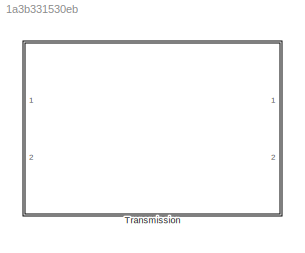
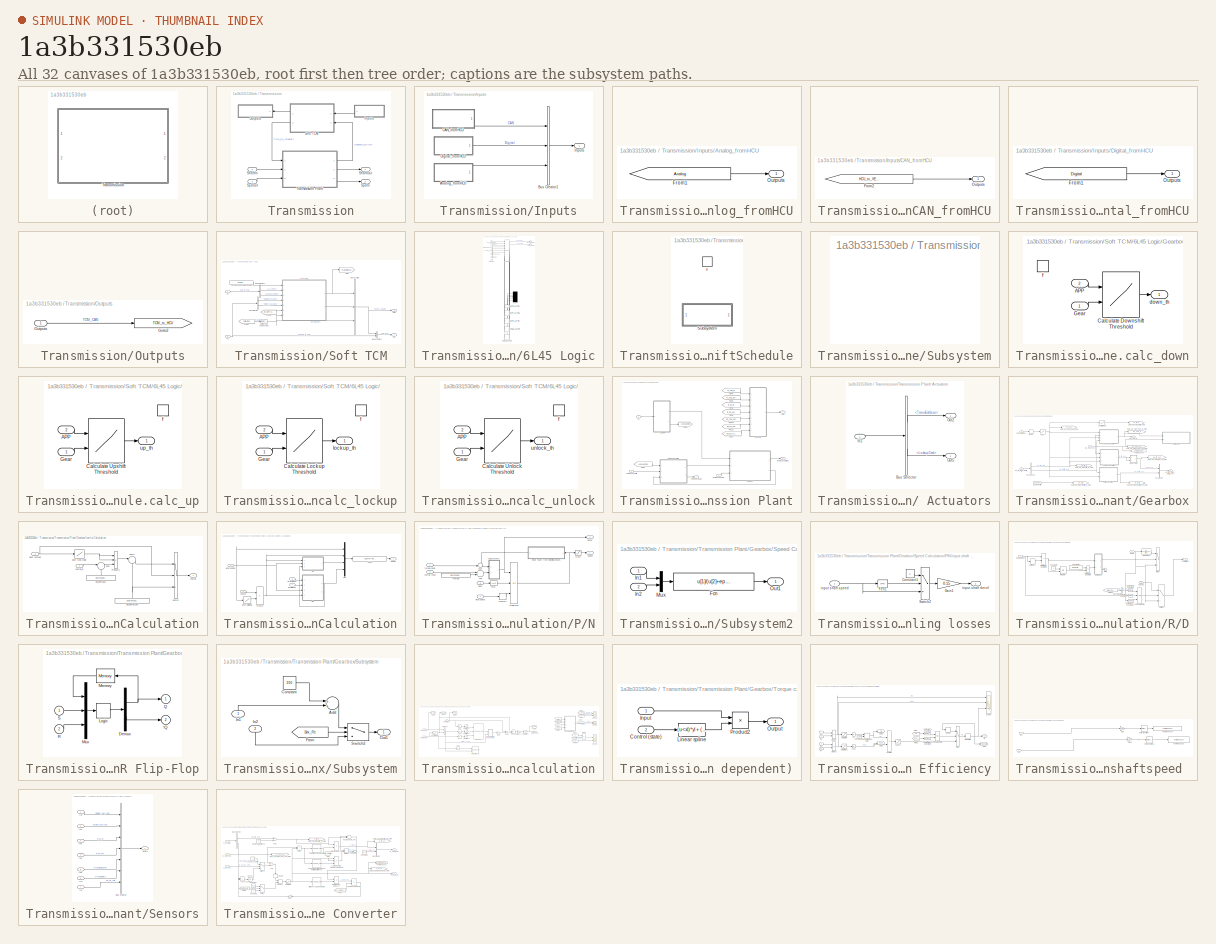
[diagram: thumbnail index - all 32 canvases of the model, root first then tree order]
MODEL slx_1a3b331530eb
KIND library
CONFIG AbsTol = auto
CONFIG EnableMultiTasking = off
CONFIG FixedStep = auto
CONFIG MaxStep = auto
CONFIG MinStep = auto
CONFIG RelTol = 1e-3
CONFIG SampleTimeConstraint = Unconstrained
CONFIG Solver = VariableStepAuto
CONFIG SolverName = VariableStepAuto
CONFIG StartTime = 0.0
CONFIG StopTime = 10.0
BLOCK [SubSystem] Transmission
  Ports = [2, 2]
  RequestExecContextInheritance = off
  Variant = off
BLOCK [SubSystem] Transmission/Inputs
  AncestorBlock = lib_DCDC/DC-DC Converter/Inputs
  Ports = [0, 1]
  RequestExecContextInheritance = off
  Variant = off
BLOCK [SubSystem] Transmission/Inputs/Analog_fromHCU
  Ports = [0, 1]
  RequestExecContextInheritance = off
  Variant = off
BLOCK [From] Transmission/Inputs/Analog_fromHCU/From1
  GotoTag = Analog
  TagVisibility = global
BLOCK [Outport] Transmission/Inputs/Analog_fromHCU/Outputs
  IconDisplay = Port number
BLOCK [BusCreator] Transmission/Inputs/Bus Creator1
  DisplayOption = bar
  InheritFromInputs = on
  Inputs = 3
  Ports = [3, 1]
BLOCK [SubSystem] Transmission/Inputs/CAN_fromHCU
  Ports = [0, 1]
  RequestExecContextInheritance = off
  Variant = off
BLOCK [From] Transmission/Inputs/CAN_fromHCU/From2
  GotoTag = HCU_to_VEH_CAN
  TagVisibility = global
BLOCK [Outport] Transmission/Inputs/CAN_fromHCU/Outputs
  IconDisplay = Port number
BLOCK [SubSystem] Transmission/Inputs/Digital_fromHCU
  Ports = [0, 1]
  RequestExecContextInheritance = off
  Variant = off
BLOCK [From] Transmission/Inputs/Digital_fromHCU/From1
  GotoTag = Digital
  TagVisibility = global
BLOCK [Outport] Transmission/Inputs/Digital_fromHCU/Outputs
  IconDisplay = Port number
BLOCK [Outport] Transmission/Inputs/Inputs
  IconDisplay = Port number
BLOCK [SubSystem] Transmission/Outputs
  AncestorBlock = lib_DCDC/DC-DC Converter/Outputs
  Ports = [1]
  RequestExecContextInheritance = off
  Variant = off
BLOCK [Goto] Transmission/Outputs/Goto2
  GotoTag = TCM_to_HCU
  TagVisibility = global
BLOCK [Inport] Transmission/Outputs/Outputs
  IconDisplay = Port number
BLOCK [Inport] Transmission/ShaftIn
  IconDisplay = Port number
BLOCK [Outport] Transmission/ShaftOut
  IconDisplay = Port number
BLOCK [SubSystem] Transmission/Soft TCM
  Ports = [2, 2]
  RequestExecContextInheritance = off
  Variant = off
BLOCK [SubSystem] Transmission/Soft TCM/6L45 Logic
  ErrorFcn = Stateflow.Translate.translate
  PermitHierarchicalResolution = ExplicitOnly
  Ports = [7, 2]
  RequestExecContextInheritance = off
  SFBlockType = Chart
  TreatAsAtomicUnit = on
  Variant = off
BLOCK [Demux] Transmission/Soft TCM/6L45 Logic/ Demux 
  Outputs = 5
  Ports = [1, 5]
BLOCK [S-Function] Transmission/Soft TCM/6L45 Logic/ SFunction 
  EnableBusSupport = off
  FunctionName = sf_sfun
  PortCounts = [11 11]
  Ports = [11, 11]
  SFcnIsStateOwnerBlock = off
  SFunctionDeploymentMode = off
  Tag = Stateflow S-Function lib_Transmission 59
BLOCK [SubSystem] Transmission/Soft TCM/6L45 Logic/Gearbox_Control.Shift_Schedule.PlotShiftSchedule
  Ports = [0, 0, 0, 1]
  PreDeleteFcn = Stateflow.SLINSF.SimulinkMan.removePreDeleteFcn
  RequestExecContextInheritance = off
  UndoDeleteFcn = Stateflow.SLINSF.SimulinkMan.restorePreDeleteFcn
  Variant = off
BLOCK [SubSystem] Transmission/Soft TCM/6L45 Logic/Gearbox_Control.Shift_Schedule.PlotShiftSchedule/Subsystem
  OpenFcn = figure;\nPlotGearShiftSchedule(Gearbox.L45.PedalPositions,Gearbox.L45.UpShiftSpeeds,Gearbox.L45.DownShiftSpeeds,'6L45')
  Ports = []
  RequestExecContextInheritance = off
  Variant = off
BLOCK [TriggerPort] Transmission/Soft TCM/6L45 Logic/Gearbox_Control.Shift_Schedule.PlotShiftSchedule/f
  CopyFcn = Stateflow.SLINSF.SimulinkMan.removeBlockPreDeleteFcn
  Ports = []
  PreDeleteFcn = Stateflow.SLINSF.SimulinkMan.unsafePredeleteFcn
  TriggerType = function-call
  VariantControl = Variant
BLOCK [SubSystem] Transmission/Soft TCM/6L45 Logic/Gearbox_Control.Shift_Schedule.calc_down
  Ports = [2, 1, 0, 1]
  PreDeleteFcn = Stateflow.SLINSF.SimulinkMan.removePreDeleteFcn
  RequestExecContextInheritance = off
  UndoDeleteFcn = Stateflow.SLINSF.SimulinkMan.restorePreDeleteFcn
  Variant = off
BLOCK [Inport] Transmission/Soft TCM/6L45 Logic/Gearbox_Control.Shift_Schedule.calc_down/APP
  IconDisplay = Port number
  Port = 2
BLOCK [Lookup2D] Transmission/Soft TCM/6L45 Logic/Gearbox_Control.Shift_Schedule.calc_down/Calculate Downshift Threshold
  ColumnIndex = [2,3,4,5,6,7,8]
  InputSameDT = off
  LookUpMeth = Interpolation-Use End Values
  RowIndex = gb.ctrl.dmd.init.gear_dnshift.idx1_lin_accel
  SaturateOnIntegerOverflow = off
  Table = gb.ctrl.dmd.init.gear_dnshift.map'
BLOCK [Inport] Transmission/Soft TCM/6L45 Logic/Gearbox_Control.Shift_Schedule.calc_down/Gear
  IconDisplay = Port number
BLOCK [Outport] Transmission/Soft TCM/6L45 Logic/Gearbox_Control.Shift_Schedule.calc_down/down_th
  IconDisplay = Port number
BLOCK [TriggerPort] Transmission/Soft TCM/6L45 Logic/Gearbox_Control.Shift_Schedule.calc_down/f
  CopyFcn = Stateflow.SLINSF.SimulinkMan.removeBlockPreDeleteFcn
  Ports = []
  PreDeleteFcn = Stateflow.SLINSF.SimulinkMan.unsafePredeleteFcn
  TriggerType = function-call
  VariantControl = Variant
BLOCK [SubSystem] Transmission/Soft TCM/6L45 Logic/Gearbox_Control.Shift_Schedule.calc_up
  Ports = [2, 1, 0, 1]
  PreDeleteFcn = Stateflow.SLINSF.SimulinkMan.removePreDeleteFcn
  RequestExecContextInheritance = off
  UndoDeleteFcn = Stateflow.SLINSF.SimulinkMan.restorePreDeleteFcn
  Variant = off
BLOCK [Inport] Transmission/Soft TCM/6L45 Logic/Gearbox_Control.Shift_Schedule.calc_up/APP
  IconDisplay = Port number
  Port = 2
BLOCK [Lookup2D] Transmission/Soft TCM/6L45 Logic/Gearbox_Control.Shift_Schedule.calc_up/Calculate Upshift Threshold
  ColumnIndex = [1,2,3,4,5,6,7]
  InputSameDT = off
  LookUpMeth = Interpolation-Use End Values
  RowIndex = gb.ctrl.dmd.init.gear_upshift.idx1_lin_accel
  SaturateOnIntegerOverflow = off
  Table = gb.ctrl.dmd.init.gear_upshift.map'
BLOCK [Inport] Transmission/Soft TCM/6L45 Logic/Gearbox_Control.Shift_Schedule.calc_up/Gear
  IconDisplay = Port number
BLOCK [TriggerPort] Transmission/Soft TCM/6L45 Logic/Gearbox_Control.Shift_Schedule.calc_up/f
  CopyFcn = Stateflow.SLINSF.SimulinkMan.removeBlockPreDeleteFcn
  Ports = []
  PreDeleteFcn = Stateflow.SLINSF.SimulinkMan.unsafePredeleteFcn
  TriggerType = function-call
  VariantControl = Variant
BLOCK [Outport] Transmission/Soft TCM/6L45 Logic/Gearbox_Control.Shift_Schedule.calc_up/up_th
  IconDisplay = Port number
BLOCK [Outport] Transmission/Soft TCM/6L45 Logic/LockupCmd
  IconDisplay = Port number
  Port = 2
BLOCK [Inport] Transmission/Soft TCM/6L45 Logic/ShftLvrPos
  IconDisplay = Port number
  Port = 7
BLOCK [SubSystem] Transmission/Soft TCM/6L45 Logic/Torque_Converter_Control.calc_lockup
  Ports = [2, 1, 0, 1]
  PreDeleteFcn = Stateflow.SLINSF.SimulinkMan.removePreDeleteFcn
  RequestExecContextInheritance = off
  UndoDeleteFcn = Stateflow.SLINSF.SimulinkMan.restorePreDeleteFcn
  Variant = off
BLOCK [Inport] Transmission/Soft TCM/6L45 Logic/Torque_Converter_Control.calc_lockup/APP
  IconDisplay = Port number
  Port = 2
BLOCK [Lookup2D] Transmission/Soft TCM/6L45 Logic/Torque_Converter_Control.calc_lockup/Calculate Lockup Threshold
  ColumnIndex = cpl.ctrl.init.trqconv_lockup.idx2_gear
  InputSameDT = off
  LookUpMeth = Interpolation-Use End Values
  RowIndex = cpl.ctrl.init.trqconv_lockup.idx1_lin_accel
  SaturateOnIntegerOverflow = off
  Table = cpl.ctrl.init.trqconv_lockup.map
BLOCK [Inport] Transmission/Soft TCM/6L45 Logic/Torque_Converter_Control.calc_lockup/Gear
  IconDisplay = Port number
BLOCK [TriggerPort] Transmission/Soft TCM/6L45 Logic/Torque_Converter_Control.calc_lockup/f
  CopyFcn = Stateflow.SLINSF.SimulinkMan.removeBlockPreDeleteFcn
  Ports = []
  PreDeleteFcn = Stateflow.SLINSF.SimulinkMan.unsafePredeleteFcn
  TriggerType = function-call
  VariantControl = Variant
BLOCK [Outport] Transmission/Soft TCM/6L45 Logic/Torque_Converter_Control.calc_lockup/lockup_th
  IconDisplay = Port number
BLOCK [SubSystem] Transmission/Soft TCM/6L45 Logic/Torque_Converter_Control.calc_unlock
  Ports = [2, 1, 0, 1]
  PreDeleteFcn = Stateflow.SLINSF.SimulinkMan.removePreDeleteFcn
  RequestExecContextInheritance = off
  UndoDeleteFcn = Stateflow.SLINSF.SimulinkMan.restorePreDeleteFcn
  Variant = off
BLOCK [Inport] Transmission/Soft TCM/6L45 Logic/Torque_Converter_Control.calc_unlock/APP
  IconDisplay = Port number
  Port = 2
BLOCK [Lookup2D] Transmission/Soft TCM/6L45 Logic/Torque_Converter_Control.calc_unlock/Calculate Unlock Threshold
  ColumnIndex = cpl.ctrl.init.trqconv_unlock.idx2_gear
  InputSameDT = off
  LookUpMeth = Interpolation-Use End Values
  RowIndex = cpl.ctrl.init.trqconv_unlock.idx1_lin_accel
  SaturateOnIntegerOverflow = off
  Table = cpl.ctrl.init.trqconv_unlock.map
BLOCK [Inport] Transmission/Soft TCM/6L45 Logic/Torque_Converter_Control.calc_unlock/Gear
  IconDisplay = Port number
BLOCK [TriggerPort] Transmission/Soft TCM/6L45 Logic/Torque_Converter_Control.calc_unlock/f
  CopyFcn = Stateflow.SLINSF.SimulinkMan.removeBlockPreDeleteFcn
  Ports = []
  PreDeleteFcn = Stateflow.SLINSF.SimulinkMan.unsafePredeleteFcn
  TriggerType = function-call
  VariantControl = Variant
BLOCK [Outport] Transmission/Soft TCM/6L45 Logic/Torque_Converter_Control.calc_unlock/unlock_th
  IconDisplay = Port number
BLOCK [Outport] Transmission/Soft TCM/6L45 Logic/TransEstGear
  IconDisplay = Port number
BLOCK [Inport] Transmission/Soft TCM/6L45 Logic/VehicleSpeed
  IconDisplay = Port number
  Port = 3
BLOCK [Inport] Transmission/Soft TCM/6L45 Logic/drvAPP
  IconDisplay = Port number
  Port = 2
BLOCK [Inport] Transmission/Soft TCM/6L45 Logic/drvBPP
  IconDisplay = Port number
  Port = 6
BLOCK [Inport] Transmission/Soft TCM/6L45 Logic/tc_lockup_thrsh
  IconDisplay = Port number
BLOCK [Inport] Transmission/Soft TCM/6L45 Logic/tc_spd_in
  IconDisplay = Port number
  Port = 4
BLOCK [Inport] Transmission/Soft TCM/6L45 Logic/tc_spd_out
  IconDisplay = Port number
  Port = 5
BLOCK [BusCreator] Transmission/Soft TCM/Bus Creator
  DisplayOption = bar
  InheritFromInputs = on
  Inputs = 3
  Ports = [3, 1]
BLOCK [BusCreator] Transmission/Soft TCM/Bus Creator1
  DisplayOption = bar
  InheritFromInputs = on
  Inputs = 2
  Ports = [2, 1]
BLOCK [BusSelector] Transmission/Soft TCM/Bus Selector
  OutputAsBus = off
  OutputSignals = impeller_spd_rads,turbine_spd_rads
  Ports = [1, 2]
BLOCK [BusSelector] Transmission/Soft TCM/Bus Selector1
  OutputAsBus = off
  OutputSignals = CAN.PPEI_Engine_General_Status_1.AccActPos,CAN.PPEI_Vehicle_Speed_and_Distance.VehSpdAvgDrvn
  Ports = [1, 2]
BLOCK [DataTypeConversion] Transmission/Soft TCM/Data Type Conversion
  RndMeth = Floor
  SaturateOnIntegerOverflow = off
BLOCK [From] Transmission/Soft TCM/From
  GotoTag = ShftLvrPos
  TagVisibility = global
BLOCK [From] Transmission/Soft TCM/From1
  GotoTag = drv_BPP_percent
  TagVisibility = global
BLOCK [Goto] Transmission/Soft TCM/Goto
  GotoTag = TransEstGear
  TagVisibility = global
BLOCK [Inport] Transmission/Soft TCM/In
  IconDisplay = Port number
BLOCK [Inport] Transmission/Soft TCM/In1
  IconDisplay = Port number
  Port = 2
BLOCK [Outport] Transmission/Soft TCM/Out
  IconDisplay = Port number
BLOCK [Outport] Transmission/Soft TCM/Out1
  IconDisplay = Port number
  Port = 2
BLOCK [Constant] Transmission/Soft TCM/TorqConv Lockup threshold
  Value = tc.plant.init.lock_thresh
BLOCK [Outport] Transmission/SpdIn
  IconDisplay = Port number
  Port = 2
BLOCK [Inport] Transmission/SpdOut
  IconDisplay = Port number
  Port = 2
BLOCK [SubSystem] Transmission/Transmission Plant
  Ports = [3, 3]
  RequestExecContextInheritance = off
  Variant = off
BLOCK [SubSystem] Transmission/Transmission Plant/ Actuators
  Ports = [1, 2]
  RequestExecContextInheritance = off
  Variant = off
BLOCK [BusSelector] Transmission/Transmission Plant/ Actuators/Bus Selector
  OutputAsBus = off
  OutputSignals = TransEstGear,LockupCmd
  Ports = [1, 2]
BLOCK [Inport] Transmission/Transmission Plant/ Actuators/In1
  IconDisplay = Port number
BLOCK [Outport] Transmission/Transmission Plant/ Actuators/Out2
  IconDisplay = Port number
BLOCK [Outport] Transmission/Transmission Plant/ Actuators/Out5
  IconDisplay = Port number
  Port = 2
BLOCK [From] Transmission/Transmission Plant/From
  GotoTag = gb_trq_ratio
  TagVisibility = global
BLOCK [From] Transmission/Transmission Plant/From10
  GotoTag = gb_spd_out
  TagVisibility = global
BLOCK [From] Transmission/Transmission Plant/From11
  GotoTag = gb_trq_out
  TagVisibility = global
BLOCK [From] Transmission/Transmission Plant/From4
  GotoTag = LockupCmd
BLOCK [From] Transmission/Transmission Plant/From5
  GotoTag = tc_spd_in
  TagVisibility = global
BLOCK [From] Transmission/Transmission Plant/From6
  GotoTag = tc_spd_out
  TagVisibility = global
BLOCK [From] Transmission/Transmission Plant/From8
  GotoTag = tc_trq_in
  TagVisibility = global
BLOCK [From] Transmission/Transmission Plant/From9
  GotoTag = tc_trq_out
  TagVisibility = global
BLOCK [SubSystem] Transmission/Transmission Plant/Gearbox
  Ports = [3, 2]
  RequestExecContextInheritance = off
  Variant = off
BLOCK [BusCreator] Transmission/Transmission Plant/Gearbox/Bus Creator
  DisplayOption = bar
  InheritFromInputs = on
  Inputs = 2
  Ports = [2, 1]
BLOCK [BusSelector] Transmission/Transmission Plant/Gearbox/Bus Selector
  OutputAsBus = off
  OutputSignals = tc_trq_out,tc_inertia_out
  Ports = [1, 2]
BLOCK [Constant] Transmission/Transmission Plant/Gearbox/Engine Inertia
  Value = Engine.Inertia
BLOCK [Lookup] Transmission/Transmission Plant/Gearbox/Gear
  InputValues = gb.plant.init.gear.idx1_shifter
  LookUpMeth = Interpolation-Use End Values
  OutDataTypeStr = double
  Table = gb.plant.init.gear.idx2_gear
BLOCK [SubSystem] Transmission/Transmission Plant/Gearbox/Inertia Calculation
  Ports = [2, 1]
  RequestExecContextInheritance = off
  Variant = off
BLOCK [Outport] Transmission/Transmission Plant/Gearbox/Inertia Calculation/Inertia
  IconDisplay = Port number
BLOCK [Inport] Transmission/Transmission Plant/Gearbox/Inertia Calculation/Inertia_in
  IconDisplay = Port number
BLOCK [Product] Transmission/Transmission Plant/Gearbox/Inertia Calculation/Product2
  Inputs = 3
  Ports = [3, 1]
  RndMeth = Floor
BLOCK [Sum] Transmission/Transmission Plant/Gearbox/Inertia Calculation/Sum
  IconShape = round
  Inputs = |++
  Ports = [2, 1]
BLOCK [Sum] Transmission/Transmission Plant/Gearbox/Inertia Calculation/Sum2
  IconShape = round
  Inputs = |++
  Ports = [2, 1]
BLOCK [Switch] Transmission/Transmission Plant/Gearbox/Inertia Calculation/Switch
  Criteria = u2 ~= 0
  Threshold = 0.5
BLOCK [Constant] Transmission/Transmission Plant/Gearbox/Inertia Calculation/gb_inertia_in
  Value = Gearbox.InputShaftInertia
BLOCK [Constant] Transmission/Transmission Plant/Gearbox/Inertia Calculation/gb_inertia_out
  Value = Gearbox.OutputShaftInertia
BLOCK [Inport] Transmission/Transmission Plant/Gearbox/Inertia Calculation/gear number
  IconDisplay = Port number
  Port = 2
BLOCK [Lookup] Transmission/Transmission Plant/Gearbox/Inertia Calculation/gear ratio table
  InputValues = gb.plant.init.ratio.idx1_gear
  OutDataTypeStr = double
  Table = gb.plant.init.ratio.map
BLOCK [Memory] Transmission/Transmission Plant/Gearbox/Memory
BLOCK [SubSystem] Transmission/Transmission Plant/Gearbox/Speed Calculation
  Ports = [4, 1]
  RequestExecContextInheritance = off
  Variant = off
BLOCK [Fcn] Transmission/Transmission Plant/Gearbox/Speed Calculation/Fcn2
  Expr = (u[1]==0)*u[4]+(u[1]>0)*u[3]
BLOCK [Inport] Transmission/Transmission Plant/Gearbox/Speed Calculation/Inertia Input
  IconDisplay = Port number
  Port = 4
BLOCK [Mux] Transmission/Transmission Plant/Gearbox/Speed Calculation/Mux
  DisplayOption = bar
  Ports = [4, 1]
BLOCK [SubSystem] Transmission/Transmission Plant/Gearbox/Speed Calculation/P//N
  Ports = [4, 2]
  RequestExecContextInheritance = off
  Variant = off
BLOCK [Saturate] Transmission/Transmission Plant/Gearbox/Speed Calculation/P//N/(0,inf)
  InputPortMap = u0
  LowerLimit = 0
  Ports = [1, 1]
  UpperLimit = 1100
BLOCK [Sum] Transmission/Transmission Plant/Gearbox/Speed Calculation/P//N/Add
  InputSameDT = off
  OutDataTypeStr = Inherit: Inherit via internal rule
  Ports = [2, 1]
  SaturateOnIntegerOverflow = off
BLOCK [Fcn] Transmission/Transmission Plant/Gearbox/Speed Calculation/P//N/Fcn2
  Expr = u==0
BLOCK [Inport] Transmission/Transmission Plant/Gearbox/Speed Calculation/P//N/Inertia Input
  IconDisplay = Port number
  Port = 2
BLOCK [Constant] Transmission/Transmission Plant/Gearbox/Speed Calculation/P//N/Inertias
  Value = Gearbox.InputShaftInertia
BLOCK [Integrator] Transmission/Transmission Plant/Gearbox/Speed Calculation/P//N/Integrator
  ExternalReset = rising
  InitialConditionSource = external
  Ports = [3, 1]
BLOCK [Memory] Transmission/Transmission Plant/Gearbox/Speed Calculation/P//N/Memory
BLOCK [SubSystem] Transmission/Transmission Plant/Gearbox/Speed Calculation/P//N/Subsystem2
  Ports = [2, 1]
  RequestExecContextInheritance = off
  Variant = off
BLOCK [Fcn] Transmission/Transmission Plant/Gearbox/Speed Calculation/P//N/Subsystem2/Fcn
  Expr = u[1]/(u[2]+eps)*(u[2]!=0)
BLOCK [Inport] Transmission/Transmission Plant/Gearbox/Speed Calculation/P//N/Subsystem2/In1
  IconDisplay = Port number
BLOCK [Inport] Transmission/Transmission Plant/Gearbox/Speed Calculation/P//N/Subsystem2/In2
  IconDisplay = Port number
  Port = 2
BLOCK [Mux] Transmission/Transmission Plant/Gearbox/Speed Calculation/P//N/Subsystem2/Mux
  DisplayOption = bar
  Inputs = 2
  Ports = [2, 1]
BLOCK [Outport] Transmission/Transmission Plant/Gearbox/Speed Calculation/P//N/Subsystem2/Out1
  IconDisplay = Port number
BLOCK [Sum] Transmission/Transmission Plant/Gearbox/Speed Calculation/P//N/Sum
  IconShape = round
  Inputs = -+|
  Ports = [2, 1]
BLOCK [Outport] Transmission/Transmission Plant/Gearbox/Speed Calculation/P//N/decel
  IconDisplay = Port number
  Port = 2
BLOCK [Inport] Transmission/Transmission Plant/Gearbox/Speed Calculation/P//N/gear
  IconDisplay = Port number
  Port = 3
BLOCK [Inport] Transmission/Transmission Plant/Gearbox/Speed Calculation/P//N/inital speed
  IconDisplay = Port number
  Port = 4
BLOCK [SubSystem] Transmission/Transmission Plant/Gearbox/Speed Calculation/P//N/input shaft free wheeling losses
  Ports = [1, 1]
  RequestExecContextInheritance = off
  Variant = off
BLOCK [Constant] Transmission/Transmission Plant/Gearbox/Speed Calculation/P//N/input shaft free wheeling losses/Constant1
  Value = 0
BLOCK [Fcn] Transmission/Transmission Plant/Gearbox/Speed Calculation/P//N/input shaft free wheeling losses/Fcn1
  Expr = u==0
BLOCK [Gain] Transmission/Transmission Plant/Gearbox/Speed Calculation/P//N/input shaft free wheeling losses/Gain1
  Gain = 0.15
BLOCK [Switch] Transmission/Transmission Plant/Gearbox/Speed Calculation/P//N/input shaft free wheeling losses/Switch2
  Threshold = 0.5
BLOCK [Outport] Transmission/Transmission Plant/Gearbox/Speed Calculation/P//N/input shaft free wheeling losses/input shaft decel
  IconDisplay = Port number
BLOCK [Inport] Transmission/Transmission Plant/Gearbox/Speed Calculation/P//N/input shaft free wheeling losses/input shaft speed
  IconDisplay = Port number
BLOCK [Outport] Transmission/Transmission Plant/Gearbox/Speed Calculation/P//N/speed
  IconDisplay = Port number
BLOCK [Inport] Transmission/Transmission Plant/Gearbox/Speed Calculation/P//N/torque input
  IconDisplay = Port number
BLOCK [Product] Transmission/Transmission Plant/Gearbox/Speed Calculation/Product
  Ports = [2, 1]
  RndMeth = Floor
BLOCK [SubSystem] Transmission/Transmission Plant/Gearbox/Speed Calculation/R//D
  Ports = [3, 1]
  RequestExecContextInheritance = off
  Variant = off
BLOCK [BusSelector] Transmission/Transmission Plant/Gearbox/Speed Calculation/R//D/Bus Selector
  OutputAsBus = off
  OutputSignals = drv_BPP_req_[%]
  Ports = [1, 1]
BLOCK [Reference] Transmission/Transmission Plant/Gearbox/Speed Calculation/R//D/Compare To Constant  REF=simulink/Logic and Bit
Operations/Compare
To Constant
  Ports = [1, 1]
  SourceBlock = simulink/Logic and Bit\nOperations/Compare\nTo Constant
  SourceProductBaseCode = SL
  SourceProductName = Simulink
  SourceType = Compare To Constant
BLOCK [Reference] Transmission/Transmission Plant/Gearbox/Speed Calculation/R//D/Compare To Constant1  REF=simulink/Logic and Bit
Operations/Compare
To Constant
  Ports = [1, 1]
  SourceBlock = simulink/Logic and Bit\nOperations/Compare\nTo Constant
  SourceProductBaseCode = SL
  SourceProductName = Simulink
  SourceType = Compare To Constant
BLOCK [Reference] Transmission/Transmission Plant/Gearbox/Speed Calculation/R//D/Compare To Constant2  REF=simulink/Logic and Bit
Operations/Compare
To Constant
  Ports = [1, 1]
  SourceBlock = simulink/Logic and Bit\nOperations/Compare\nTo Constant
  SourceProductBaseCode = SL
  SourceProductName = Simulink
  SourceType = Compare To Constant
BLOCK [Constant] Transmission/Transmission Plant/Gearbox/Speed Calculation/R//D/Constant5
BLOCK [Constant] Transmission/Transmission Plant/Gearbox/Speed Calculation/R//D/Constant6
  Value = gb.plant.init.shift_time
BLOCK [From] Transmission/Transmission Plant/Gearbox/Speed Calculation/R//D/From10
  GotoTag = Driver_Request
  TagVisibility = global
BLOCK [Integrator] Transmission/Transmission Plant/Gearbox/Speed Calculation/R//D/Integrator
  ExternalReset = rising
  Ports = [2, 1]
BLOCK [Logic] Transmission/Transmission Plant/Gearbox/Speed Calculation/R//D/Logical Operator
  AllPortsSameDT = off
  Inputs = 3
  OutDataTypeStr = boolean
  Ports = [3, 1]
BLOCK [RelationalOperator] Transmission/Transmission Plant/Gearbox/Speed Calculation/R//D/Relational Operator4
  Operator = ~=
  Ports = [2, 1]
BLOCK [RelationalOperator] Transmission/Transmission Plant/Gearbox/Speed Calculation/R//D/Relational Operator5
  Operator = <=
  Ports = [2, 1]
BLOCK [SubSystem] Transmission/Transmission Plant/Gearbox/Speed Calculation/R//D/S-R Flip-Flop
  Ports = [2, 2]
  RequestExecContextInheritance = off
  Variant = off
BLOCK [Outport] Transmission/Transmission Plant/Gearbox/Speed Calculation/R//D/S-R Flip-Flop/!Q
  IconDisplay = Port number
  InitialOutput = 1
  Port = 2
BLOCK [Demux] Transmission/Transmission Plant/Gearbox/Speed Calculation/R//D/S-R Flip-Flop/Demux
  Outputs = 2
  Ports = [1, 2]
BLOCK [CombinatorialLogic] Transmission/Transmission Plant/Gearbox/Speed Calculation/R//D/S-R Flip-Flop/Logic
  TruthTable = [0 1;0 1;1 0;0 1;1 0;0 1;1 0;1 0]
BLOCK [Memory] Transmission/Transmission Plant/Gearbox/Speed Calculation/R//D/S-R Flip-Flop/Memory
  InheritSampleTime = on
  InitialCondition = initial_condition
BLOCK [Mux] Transmission/Transmission Plant/Gearbox/Speed Calculation/R//D/S-R Flip-Flop/Mux
  Inputs = 3
  Ports = [3, 1]
BLOCK [Outport] Transmission/Transmission Plant/Gearbox/Speed Calculation/R//D/S-R Flip-Flop/Q
  IconDisplay = Port number
  InitialOutput = 0
BLOCK [Inport] Transmission/Transmission Plant/Gearbox/Speed Calculation/R//D/S-R Flip-Flop/R
  IconDisplay = Port number
  Port = 2
BLOCK [Inport] Transmission/Transmission Plant/Gearbox/Speed Calculation/R//D/S-R Flip-Flop/S
  IconDisplay = Port number
BLOCK [Switch] Transmission/Transmission Plant/Gearbox/Speed Calculation/R//D/Switch
  Threshold = 0.5
BLOCK [Switch] Transmission/Transmission Plant/Gearbox/Speed Calculation/R//D/Switch1
  Criteria = u2 > Threshold
  InputSameDT = off
  SaturateOnIntegerOverflow = off
BLOCK [TransferFcn] Transmission/Transmission Plant/Gearbox/Speed Calculation/R//D/Transfer Fcn
  Denominator = [.2 1]
BLOCK [Memory] Transmission/Transmission Plant/Gearbox/Speed Calculation/R//D/Unit Delay7
BLOCK [Inport] Transmission/Transmission Plant/Gearbox/Speed Calculation/R//D/gear number
  IconDisplay = Port number
  Port = 2
BLOCK [Inport] Transmission/Transmission Plant/Gearbox/Speed Calculation/R//D/spd in
  IconDisplay = Port number
BLOCK [Outport] Transmission/Transmission Plant/Gearbox/Speed Calculation/R//D/spd in filtered
  IconDisplay = Port number
BLOCK [Inport] Transmission/Transmission Plant/Gearbox/Speed Calculation/R//D/speed1
  IconDisplay = Port number
  Port = 3
BLOCK [Terminator] Transmission/Transmission Plant/Gearbox/Speed Calculation/R//D/term2
BLOCK [Outport] Transmission/Transmission Plant/Gearbox/Speed Calculation/Speed
  IconDisplay = Port number
BLOCK [Inport] Transmission/Transmission Plant/Gearbox/Speed Calculation/gear number
  IconDisplay = Port number
BLOCK [Lookup] Transmission/Transmission Plant/Gearbox/Speed Calculation/gear ratio table
  InputValues = gb.plant.init.ratio.idx1_gear
  Table = gb.plant.init.ratio.map
BLOCK [Inport] Transmission/Transmission Plant/Gearbox/Speed Calculation/spd out
  IconDisplay = Port number
  Port = 2
BLOCK [Inport] Transmission/Transmission Plant/Gearbox/Speed Calculation/torque input
  IconDisplay = Port number
  Port = 3
BLOCK [SubSystem] Transmission/Transmission Plant/Gearbox/Subsystem
  Ports = [2, 1]
  RequestExecContextInheritance = off
  Variant = off
BLOCK [Sum] Transmission/Transmission Plant/Gearbox/Subsystem/Add
  InputSameDT = off
  OutDataTypeStr = Inherit: Inherit via internal rule
  Ports = [2, 1]
  SaturateOnIntegerOverflow = off
BLOCK [Constant] Transmission/Transmission Plant/Gearbox/Subsystem/Constant
  Value = 200
BLOCK [From] Transmission/Transmission Plant/Gearbox/Subsystem/From
  GotoTag = Brk_Flt
  TagVisibility = global
BLOCK [Inport] Transmission/Transmission Plant/Gearbox/Subsystem/In1
  IconDisplay = Port number
BLOCK [Inport] Transmission/Transmission Plant/Gearbox/Subsystem/In2
  IconDisplay = Port number
  Port = 2
BLOCK [Outport] Transmission/Transmission Plant/Gearbox/Subsystem/Out1
  IconDisplay = Port number
BLOCK [Switch] Transmission/Transmission Plant/Gearbox/Subsystem/Switch2
  Criteria = u2 > Threshold
  InputSameDT = off
  SaturateOnIntegerOverflow = off
BLOCK [ToWorkspace] Transmission/Transmission Plant/Gearbox/To Workspace
  FixptAsFi = on
  MaxDataPoints = inf
  Ports = [1]
  SampleTime = -1
  Save2DSignal = 3-D array (concatenate along third dimension)
  VariableName = TOSS
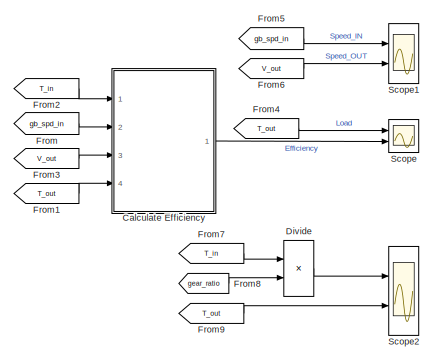
[diagram: Transmission/Transmission Plant/Gearbox/Torque calculation - part 1/2, right side, full height]
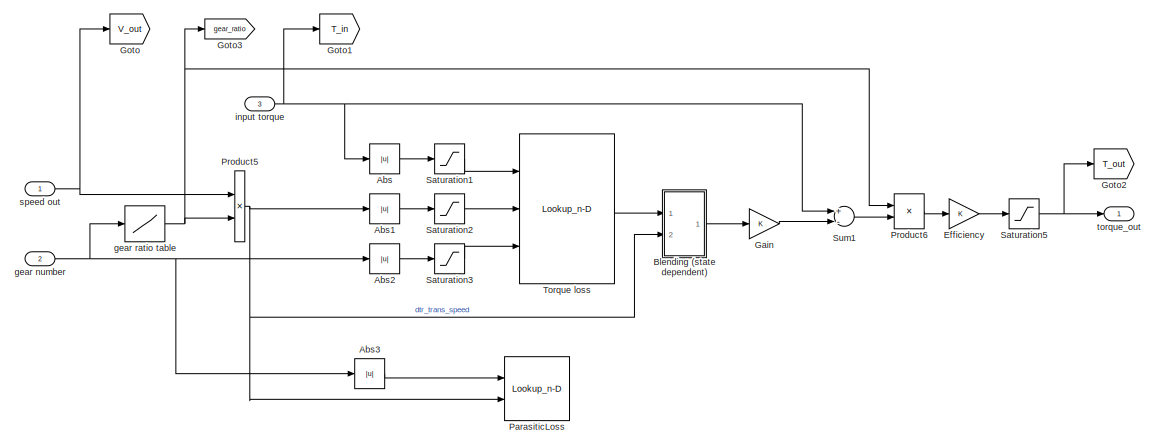
[diagram: Transmission/Transmission Plant/Gearbox/Torque calculation - part 2/2, center side, full height]
BLOCK [SubSystem] Transmission/Transmission Plant/Gearbox/Torque calculation
  Ports = [3, 1]
  RequestExecContextInheritance = off
  Variant = off
BLOCK [Inport] Transmission/Transmission Plant/Gearbox/Torque calculation/ input torque
  IconDisplay = Port number
  Port = 3
BLOCK [Abs] Transmission/Transmission Plant/Gearbox/Torque calculation/Abs
BLOCK [Abs] Transmission/Transmission Plant/Gearbox/Torque calculation/Abs1
BLOCK [Abs] Transmission/Transmission Plant/Gearbox/Torque calculation/Abs2
BLOCK [Abs] Transmission/Transmission Plant/Gearbox/Torque calculation/Abs3
  SaturateOnIntegerOverflow = off
BLOCK [SubSystem] Transmission/Transmission Plant/Gearbox/Torque calculation/Blending (state dependent)
  Ports = [2, 1]
  RequestExecContextInheritance = off
  ShowPortLabels = none
  Variant = off
BLOCK [Inport] Transmission/Transmission Plant/Gearbox/Torque calculation/Blending (state dependent)/Control (state)
  IconDisplay = Port number
  Port = 2
BLOCK [Inport] Transmission/Transmission Plant/Gearbox/Torque calculation/Blending (state dependent)/Input
  IconDisplay = Port number
BLOCK [Fcn] Transmission/Transmission Plant/Gearbox/Torque calculation/Blending (state dependent)/Linear spline
  Expr = (u<xl)*yl + (xl<=u)*(u<xc)*((yc-yl)*(u-xl)/(xc-xl)+yl) + (xc<=u)*(u<xr)*((yc-yr)*(u-xr)/(xc-xr)+yr) + (xr<=u)*yr
BLOCK [Outport] Transmission/Transmission Plant/Gearbox/Torque calculation/Blending (state dependent)/Output
  IconDisplay = Port number
BLOCK [Product] Transmission/Transmission Plant/Gearbox/Torque calculation/Blending (state dependent)/Product2
  Ports = [2, 1]
  RndMeth = Floor
BLOCK [SubSystem] Transmission/Transmission Plant/Gearbox/Torque calculation/Calculate Efficiency
  Ports = [4, 1]
  RequestExecContextInheritance = off
  Variant = off
BLOCK [Saturate] Transmission/Transmission Plant/Gearbox/Torque calculation/Calculate Efficiency/0-100%
  InputPortMap = u0
  LowerLimit = -1
  Ports = [1, 1]
  UpperLimit = 1
BLOCK [Abs] Transmission/Transmission Plant/Gearbox/Torque calculation/Calculate Efficiency/Abs
  SaturateOnIntegerOverflow = off
BLOCK [Abs] Transmission/Transmission Plant/Gearbox/Torque calculation/Calculate Efficiency/Abs1
  SaturateOnIntegerOverflow = off
BLOCK [Reference] Transmission/Transmission Plant/Gearbox/Torque calculation/Calculate Efficiency/Compare To Constant1  REF=simulink/Logic and Bit
Operations/Compare
To Constant
  Ports = [1, 1]
  SourceBlock = simulink/Logic and Bit\nOperations/Compare\nTo Constant
  SourceProductBaseCode = SL
  SourceProductName = Simulink
  SourceType = Compare To Constant
BLOCK [Reference] Transmission/Transmission Plant/Gearbox/Torque calculation/Calculate Efficiency/Compare To Constant2  REF=simulink/Logic and Bit
Operations/Compare
To Constant
  Ports = [1, 1]
  SourceBlock = simulink/Logic and Bit\nOperations/Compare\nTo Constant
  SourceProductBaseCode = SL
  SourceProductName = Simulink
  SourceType = Compare To Constant
BLOCK [Constant] Transmission/Transmission Plant/Gearbox/Torque calculation/Calculate Efficiency/Constant1
  Value = 1e-3
BLOCK [Product] Transmission/Transmission Plant/Gearbox/Torque calculation/Calculate Efficiency/Divide1
  InputSameDT = off
  Inputs = **
  OutDataTypeStr = Inherit: Inherit via internal rule
  Ports = [2, 1]
  RndMeth = Floor
  SaturateOnIntegerOverflow = off
BLOCK [Product] Transmission/Transmission Plant/Gearbox/Torque calculation/Calculate Efficiency/Divide2
  InputSameDT = off
  Inputs = **
  OutDataTypeStr = Inherit: Inherit via internal rule
  Ports = [2, 1]
  RndMeth = Floor
  SaturateOnIntegerOverflow = off
BLOCK [Outport] Transmission/Transmission Plant/Gearbox/Torque calculation/Calculate Efficiency/Eff
  IconDisplay = Port number
BLOCK [From] Transmission/Transmission Plant/Gearbox/Torque calculation/Calculate Efficiency/From
  GotoTag = Pin
  TagVisibility = global
BLOCK [From] Transmission/Transmission Plant/Gearbox/Torque calculation/Calculate Efficiency/From1
  GotoTag = Pout
  TagVisibility = global
BLOCK [Goto] Transmission/Transmission Plant/Gearbox/Torque calculation/Calculate Efficiency/Goto
  GotoTag = TransEff
  TagVisibility = global
BLOCK [Goto] Transmission/Transmission Plant/Gearbox/Torque calculation/Calculate Efficiency/Goto1
  GotoTag = Pin
  TagVisibility = global
BLOCK [Goto] Transmission/Transmission Plant/Gearbox/Torque calculation/Calculate Efficiency/Goto2
  GotoTag = Pout
  TagVisibility = global
BLOCK [Inport] Transmission/Transmission Plant/Gearbox/Torque calculation/Calculate Efficiency/In1
  IconDisplay = Port number
BLOCK [Inport] Transmission/Transmission Plant/Gearbox/Torque calculation/Calculate Efficiency/In2
  IconDisplay = Port number
  Port = 2
BLOCK [Inport] Transmission/Transmission Plant/Gearbox/Torque calculation/Calculate Efficiency/In3
  IconDisplay = Port number
  Port = 3
BLOCK [Inport] Transmission/Transmission Plant/Gearbox/Torque calculation/Calculate Efficiency/In4
  IconDisplay = Port number
  Port = 4
BLOCK [Logic] Transmission/Transmission Plant/Gearbox/Torque calculation/Calculate Efficiency/Logical Operator
  AllPortsSameDT = off
  Operator = OR
  OutDataTypeStr = boolean
  Ports = [2, 1]
BLOCK [Memory] Transmission/Transmission Plant/Gearbox/Torque calculation/Calculate Efficiency/Memory
BLOCK [Product] Transmission/Transmission Plant/Gearbox/Torque calculation/Calculate Efficiency/Pout//Pin
  InputSameDT = off
  Inputs = /*
  OutDataTypeStr = Inherit: Inherit via internal rule
  Ports = [2, 1]
  RndMeth = Floor
  SaturateOnIntegerOverflow = off
BLOCK [MinMax] Transmission/Transmission Plant/Gearbox/Torque calculation/Calculate Efficiency/Prevent divide by zero1
  Function = max
  InputSameDT = off
  Inputs = 2
  Ports = [2, 1]
  SaturateOnIntegerOverflow = off
BLOCK [RateLimiter] Transmission/Transmission Plant/Gearbox/Torque calculation/Calculate Efficiency/Rate Limiter
  FallingSlewLimit = -1e-1
  SampleTimeMode = inherited
BLOCK [Saturate] Transmission/Transmission Plant/Gearbox/Torque calculation/Calculate Efficiency/Saturation
  InputPortMap = u0
  LowerLimit = 0
  Ports = [1, 1]
  UpperLimit = inf
BLOCK [Saturate] Transmission/Transmission Plant/Gearbox/Torque calculation/Calculate Efficiency/Saturation1
  InputPortMap = u0
  LowerLimit = 0
  Ports = [1, 1]
  UpperLimit = inf
BLOCK [Scope] Transmission/Transmission Plant/Gearbox/Torque calculation/Calculate Efficiency/Scope
  NumInputPorts = 3
  Ports = [3]
  ScopeSpecificationString = Simulink.scopes.TimeScopeBlockCfg('CurrentConfiguration', extmgr.ConfigurationSet(extmgr.Configuration('Core','General UI',true),extmgr.Configuration('Core','Source UI',true),extmgr.Configuration('Sources','WiredSimulink',true,'DataLoggingVariableName','ScopeData5'),extmgr.Configuration('Visuals','Time Domain',true,'SerializedDisplays',{struct('MinYLimReal','-37695.9508','MaxYLimReal','100890.4201...<+3118ch>
BLOCK [Switch] Transmission/Transmission Plant/Gearbox/Torque calculation/Calculate Efficiency/Switch
  Criteria = u2 > Threshold
  InputSameDT = off
  SaturateOnIntegerOverflow = off
BLOCK [Product] Transmission/Transmission Plant/Gearbox/Torque calculation/Divide
  InputSameDT = off
  Inputs = **
  OutDataTypeStr = Inherit: Inherit via internal rule
  Ports = [2, 1]
  RndMeth = Floor
  SaturateOnIntegerOverflow = off
BLOCK [Gain] Transmission/Transmission Plant/Gearbox/Torque calculation/Efficiency
  OutDataTypeStr = Inherit: Inherit via internal rule
  ParamDataTypeStr = Inherit: Inherit via internal rule
  SaturateOnIntegerOverflow = off
BLOCK [From] Transmission/Transmission Plant/Gearbox/Torque calculation/From
  GotoTag = gb_spd_in
  TagVisibility = global
BLOCK [From] Transmission/Transmission Plant/Gearbox/Torque calculation/From1
  GotoTag = T_out
  TagVisibility = global
BLOCK [From] Transmission/Transmission Plant/Gearbox/Torque calculation/From2
  GotoTag = T_in
BLOCK [From] Transmission/Transmission Plant/Gearbox/Torque calculation/From3
  GotoTag = V_out
BLOCK [From] Transmission/Transmission Plant/Gearbox/Torque calculation/From4
  GotoTag = T_out
  TagVisibility = global
BLOCK [From] Transmission/Transmission Plant/Gearbox/Torque calculation/From5
  GotoTag = gb_spd_in
  TagVisibility = global
BLOCK [From] Transmission/Transmission Plant/Gearbox/Torque calculation/From6
  GotoTag = V_out
BLOCK [From] Transmission/Transmission Plant/Gearbox/Torque calculation/From7
  GotoTag = T_in
BLOCK [From] Transmission/Transmission Plant/Gearbox/Torque calculation/From8
  GotoTag = gear_ratio
BLOCK [From] Transmission/Transmission Plant/Gearbox/Torque calculation/From9
  GotoTag = T_out
  TagVisibility = global
BLOCK [Gain] Transmission/Transmission Plant/Gearbox/Torque calculation/Gain
  OutDataTypeStr = Inherit: Inherit via internal rule
  ParamDataTypeStr = Inherit: Inherit via internal rule
  SaturateOnIntegerOverflow = off
BLOCK [Goto] Transmission/Transmission Plant/Gearbox/Torque calculation/Goto
  GotoTag = V_out
BLOCK [Goto] Transmission/Transmission Plant/Gearbox/Torque calculation/Goto1
  GotoTag = T_in
BLOCK [Goto] Transmission/Transmission Plant/Gearbox/Torque calculation/Goto2
  GotoTag = T_out
  TagVisibility = global
BLOCK [Goto] Transmission/Transmission Plant/Gearbox/Torque calculation/Goto3
  GotoTag = gear_ratio
BLOCK [Lookup_n-D] Transmission/Transmission Plant/Gearbox/Torque calculation/ParasiticLoss
  BreakpointsForDimension1 = Ratio
  BreakpointsForDimension2 = Spd
  Commented = on
  InternalRulePriority = Speed
  Ports = [2, 1]
  RndMeth = Simplest
  Table = Loss
BLOCK [Product] Transmission/Transmission Plant/Gearbox/Torque calculation/Product5
  Ports = [2, 1]
  RndMeth = Floor
BLOCK [Product] Transmission/Transmission Plant/Gearbox/Torque calculation/Product6
  Ports = [2, 1]
  RndMeth = Floor
BLOCK [Saturate] Transmission/Transmission Plant/Gearbox/Torque calculation/Saturation1
  InputPortMap = u0
  LowerLimit = min( gb.plant.init.trq_loss.idx1_trq )
  Ports = [1, 1]
  UpperLimit = inf
BLOCK [Saturate] Transmission/Transmission Plant/Gearbox/Torque calculation/Saturation2
  InputPortMap = u0
  LowerLimit = min( gb.plant.init.trq_loss.idx2_spd )
  Ports = [1, 1]
  UpperLimit = inf
BLOCK [Saturate] Transmission/Transmission Plant/Gearbox/Torque calculation/Saturation3
  InputPortMap = u0
  LowerLimit = 1
  Ports = [1, 1]
  UpperLimit = 8
BLOCK [Saturate] Transmission/Transmission Plant/Gearbox/Torque calculation/Saturation5
  InputPortMap = u0
  LowerLimit = min( gb.plant.init.trq_loss.idx1_trq )
  Ports = [1, 1]
  UpperLimit = inf
BLOCK [Scope] Transmission/Transmission Plant/Gearbox/Torque calculation/Scope
  NumInputPorts = 2
  Ports = [2]
  ScopeSpecificationString = Simulink.scopes.TimeScopeBlockCfg('CurrentConfiguration', extmgr.ConfigurationSet(extmgr.Configuration('Core','General UI',true),extmgr.Configuration('Core','Source UI',true),extmgr.Configuration('Sources','WiredSimulink',true,'DataLoggingVariableName','ScopeData1'),extmgr.Configuration('Visuals','Time Domain',true,'SerializedDisplays',{struct('MinYLimReal','-60.95678','MaxYLimReal','548.61104','Y...<+2361ch>
BLOCK [Scope] Transmission/Transmission Plant/Gearbox/Torque calculation/Scope1
  NumInputPorts = 2
  Ports = [2]
  ScopeSpecificationString = Simulink.scopes.TimeScopeBlockCfg('CurrentConfiguration', extmgr.ConfigurationSet(extmgr.Configuration('Core','General UI',true),extmgr.Configuration('Core','Source UI',true),extmgr.Configuration('Sources','WiredSimulink',true,'DataLoggingVariableName','ScopeData4'),extmgr.Configuration('Visuals','Time Domain',true,'SerializedDisplays',{struct('MinYLimReal','-58.46513','MaxYLimReal','618.74308','Y...<+1484ch>
BLOCK [Scope] Transmission/Transmission Plant/Gearbox/Torque calculation/Scope2
  NumInputPorts = 2
  Ports = [2]
  ScopeSpecificationString = Simulink.scopes.TimeScopeBlockCfg('CurrentConfiguration', extmgr.ConfigurationSet(extmgr.Configuration('Core','General UI',true),extmgr.Configuration('Core','Source UI',true),extmgr.Configuration('Sources','WiredSimulink',true,'DataLoggingVariableName','ScopeData5'),extmgr.Configuration('Visuals','Time Domain',true,'SerializedDisplays',{struct('MinYLimReal','-1.00000','MaxYLimReal','1.00000','YLab...<+1403ch>
BLOCK [Sum] Transmission/Transmission Plant/Gearbox/Torque calculation/Sum1
  Inputs = +-
  Ports = [2, 1]
BLOCK [Lookup_n-D] Transmission/Transmission Plant/Gearbox/Torque calculation/Torque loss
  BreakpointsForDimension1 = gb.plant.init.trq_loss.idx1_trq
  BreakpointsForDimension2 = gb.plant.init.trq_loss.idx2_spd
  BreakpointsForDimension3 = gb.plant.init.trq_loss.idx3_gear
  InputSameDT = off
  NumberOfTableDimensions = 3
  Ports = [3, 1]
  Table = gb.plant.init.trq_loss.map
BLOCK [Inport] Transmission/Transmission Plant/Gearbox/Torque calculation/gear number
  IconDisplay = Port number
  Port = 2
BLOCK [Lookup] Transmission/Transmission Plant/Gearbox/Torque calculation/gear ratio table
  InputValues = gb.plant.init.ratio.idx1_gear
  Table = gb.plant.init.ratio.map
BLOCK [Inport] Transmission/Transmission Plant/Gearbox/Torque calculation/speed out
  IconDisplay = Port number
BLOCK [Outport] Transmission/Transmission Plant/Gearbox/Torque calculation/torque_out
  IconDisplay = Port number
BLOCK [Inport] Transmission/Transmission Plant/Gearbox/TransEstGear
  IconDisplay = Port number
BLOCK [Outport] Transmission/Transmission Plant/Gearbox/gb_spd_in
  IconDisplay = Port number
  Port = 2
BLOCK [Inport] Transmission/Transmission Plant/Gearbox/gb_spd_out
  IconDisplay = Port number
  Port = 3
BLOCK [Inport] Transmission/Transmission Plant/Gearbox/gb_trq_in gb_inertia_in
  IconDisplay = Port number
  Port = 2
BLOCK [Outport] Transmission/Transmission Plant/Gearbox/gb_trq_out gb_inertia_out
  IconDisplay = Port number
BLOCK [Lookup] Transmission/Transmission Plant/Gearbox/gear ratio table
  InputValues = gb.plant.init.ratio.idx1_gear
  LookUpMeth = Interpolation-Use End Values
  Table = gb.plant.init.ratio.map
BLOCK [Goto] Transmission/Transmission Plant/Gearbox/goto_gb_plant_gear_simu
  GotoTag = gb_gear
  TagVisibility = global
BLOCK [Goto] Transmission/Transmission Plant/Gearbox/goto_gb_plant_inertia_in_simu
  GotoTag = gb_inertia_in
  TagVisibility = global
BLOCK [Goto] Transmission/Transmission Plant/Gearbox/goto_gb_plant_inertia_out_simu
  GotoTag = gb_inertia_out
  TagVisibility = global
BLOCK [Goto] Transmission/Transmission Plant/Gearbox/goto_gb_plant_ratio_simu
  GotoTag = gb_trq_ratio
  TagVisibility = global
BLOCK [Goto] Transmission/Transmission Plant/Gearbox/goto_gb_plant_spd_in_simu
  GotoTag = gb_spd_in
  TagVisibility = global
BLOCK [Goto] Transmission/Transmission Plant/Gearbox/goto_gb_plant_spd_out_simu
  GotoTag = gb_spd_out
  TagVisibility = global
BLOCK [Goto] Transmission/Transmission Plant/Gearbox/goto_gb_plant_trq_in_simu
  GotoTag = gb_trq_in
  TagVisibility = global
BLOCK [Goto] Transmission/Transmission Plant/Gearbox/goto_gb_plant_trq_out_simu
  GotoTag = gb_trq_out
  TagVisibility = global
BLOCK [SubSystem] Transmission/Transmission Plant/Gearbox/shaftspeed 
  Ports = [2]
  RequestExecContextInheritance = off
  Variant = off
BLOCK [Gain] Transmission/Transmission Plant/Gearbox/shaftspeed /Gain
  Gain = 30/pi
  OutDataTypeStr = Inherit: Inherit via internal rule
  ParamDataTypeStr = Inherit: Inherit via internal rule
  SaturateOnIntegerOverflow = off
BLOCK [Gain] Transmission/Transmission Plant/Gearbox/shaftspeed /Gain1
  Gain = 30/pi
  OutDataTypeStr = Inherit: Inherit via internal rule
  ParamDataTypeStr = Inherit: Inherit via internal rule
  SaturateOnIntegerOverflow = off
BLOCK [Inport] Transmission/Transmission Plant/Gearbox/shaftspeed /In1
  IconDisplay = Port number
BLOCK [Inport] Transmission/Transmission Plant/Gearbox/shaftspeed /In2
  IconDisplay = Port number
  Port = 2
BLOCK [RateTransition] Transmission/Transmission Plant/Gearbox/shaftspeed /Rate Transition1
  OutPortSampleTime = 1
BLOCK [RateTransition] Transmission/Transmission Plant/Gearbox/shaftspeed /Rate Transition7
  OutPortSampleTime = 1
BLOCK [ToWorkspace] Transmission/Transmission Plant/Gearbox/shaftspeed /To Workspace3
  FixptAsFi = on
  MaxDataPoints = inf
  Ports = [1]
  SampleTime = -1
  Save2DSignal = 3-D array (concatenate along third dimension)
  VariableName = TrnsOutShftAngVel
BLOCK [ToWorkspace] Transmission/Transmission Plant/Gearbox/shaftspeed /To Workspace4
  FixptAsFi = on
  MaxDataPoints = inf
  Ports = [1]
  SampleTime = -1
  Save2DSignal = 3-D array (concatenate along third dimension)
  VariableName = TrnTrbAngVl
BLOCK [Outport] Transmission/Transmission Plant/GearboxShaftOut
  IconDisplay = Port number
  Port = 2
BLOCK [Inport] Transmission/Transmission Plant/GearboxSpdOut
  IconDisplay = Port number
  Port = 3
BLOCK [Goto] Transmission/Transmission Plant/Goto4
  GotoTag = LockupCmd
BLOCK [Inport] Transmission/Transmission Plant/In1 
  IconDisplay = Port number
BLOCK [Outport] Transmission/Transmission Plant/Out1
  IconDisplay = Port number
BLOCK [SubSystem] Transmission/Transmission Plant/Sensors
  Ports = [7, 1]
  RequestExecContextInheritance = off
  Variant = off
BLOCK [BusCreator] Transmission/Transmission Plant/Sensors/Bus Creator
  DisplayOption = bar
  InheritFromInputs = on
  Inputs = 7
  Ports = [7, 1]
BLOCK [Inport] Transmission/Transmission Plant/Sensors/In1
  IconDisplay = Port number
  Port = 7
BLOCK [Inport] Transmission/Transmission Plant/Sensors/In2
  IconDisplay = Port number
BLOCK [Inport] Transmission/Transmission Plant/Sensors/In3
  IconDisplay = Port number
  Port = 2
BLOCK [Inport] Transmission/Transmission Plant/Sensors/In4
  IconDisplay = Port number
  Port = 3
BLOCK [Inport] Transmission/Transmission Plant/Sensors/In5
  IconDisplay = Port number
  Port = 4
BLOCK [Inport] Transmission/Transmission Plant/Sensors/In6
  IconDisplay = Port number
  Port = 5
BLOCK [Inport] Transmission/Transmission Plant/Sensors/In7
  IconDisplay = Port number
  Port = 6
BLOCK [Outport] Transmission/Transmission Plant/Sensors/Out1
  IconDisplay = Port number
BLOCK [Inport] Transmission/Transmission Plant/TorqConvShaftIn
  IconDisplay = Port number
  Port = 2
BLOCK [Outport] Transmission/Transmission Plant/TorqConvSpdIn
  IconDisplay = Port number
  Port = 3
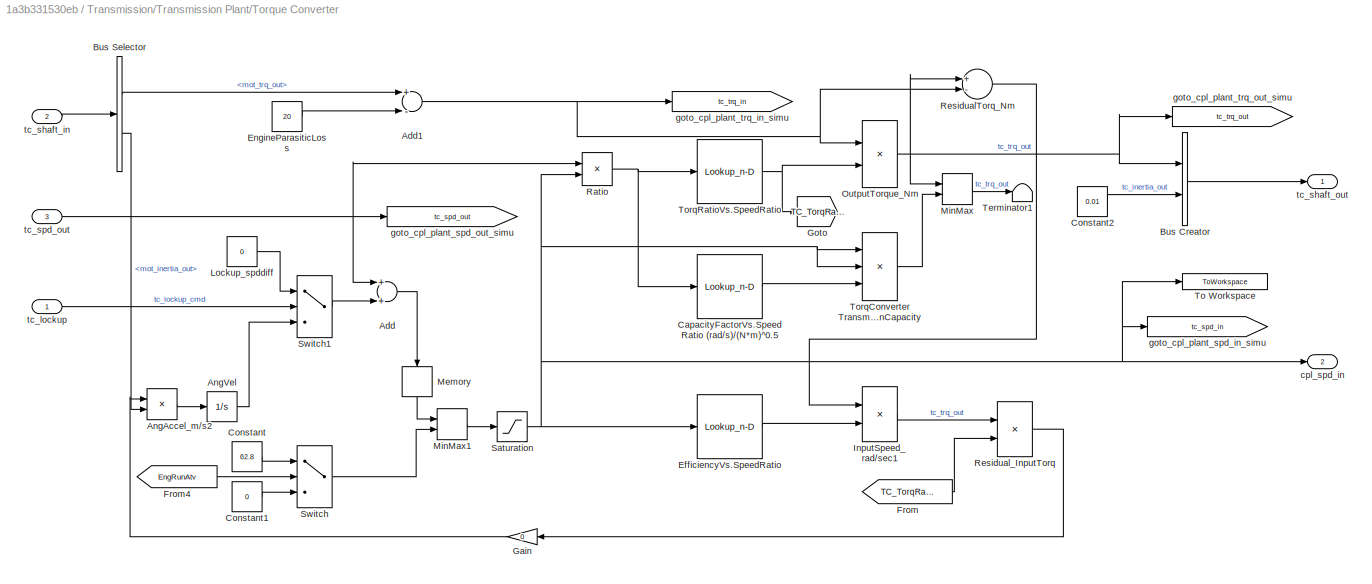
BLOCK [SubSystem] Transmission/Transmission Plant/Torque Converter
  Ports = [3, 2]
  RequestExecContextInheritance = off
  Variant = off
BLOCK [Sum] Transmission/Transmission Plant/Torque Converter/Add
  InputSameDT = off
  OutDataTypeStr = Inherit: Inherit via internal rule
  Ports = [2, 1]
  SaturateOnIntegerOverflow = off
BLOCK [Sum] Transmission/Transmission Plant/Torque Converter/Add1
  InputSameDT = off
  Inputs = +-
  OutDataTypeStr = Inherit: Inherit via internal rule
  Ports = [2, 1]
  SaturateOnIntegerOverflow = off
BLOCK [Product] Transmission/Transmission Plant/Torque Converter/AngAccel_m//s2
  InputSameDT = off
  Inputs = */
  OutDataTypeStr = Inherit: Inherit via internal rule
  Ports = [2, 1]
  RndMeth = Floor
  SaturateOnIntegerOverflow = off
BLOCK [Integrator] Transmission/Transmission Plant/Torque Converter/AngVel
  Ports = [1, 1]
BLOCK [BusCreator] Transmission/Transmission Plant/Torque Converter/Bus Creator
  DisplayOption = bar
  InheritFromInputs = on
  Inputs = 2
  Ports = [2, 1]
BLOCK [BusSelector] Transmission/Transmission Plant/Torque Converter/Bus Selector
  OutputAsBus = off
  OutputSignals = mot_trq_out,mot_inertia_out
  Ports = [1, 2]
BLOCK [Lookup_n-D] Transmission/Transmission Plant/Torque Converter/CapacityFactorVs.SpeedRatio (rad//s)//(N*m)^0.5
  BreakpointsForDimension1 = [0 0.50 0.60 0.70 0.80 0.87 0.92 0.94 0.96 0.97]
  InternalRulePriority = Speed
  NumberOfTableDimensions = 1
  Ports = [1, 1]
  RndMeth = Simplest
  Table = [12.2938 12.8588 13.1452 13.6285 14.6163 16.2675 19.3503 22.1046 29.9986 50.00]
BLOCK [Constant] Transmission/Transmission Plant/Torque Converter/Constant
  Value = 62.8
BLOCK [Constant] Transmission/Transmission Plant/Torque Converter/Constant1
  Value = 0
BLOCK [Constant] Transmission/Transmission Plant/Torque Converter/Constant2
  Value = 0.01
BLOCK [Lookup_n-D] Transmission/Transmission Plant/Torque Converter/EfficiencyVs.SpeedRatio
  BreakpointsForDimension1 = [0 0.25 0.50 0.60 0.70 0.80 0.87 0.92 0.94 0.96 0.97 1.0]
  InternalRulePriority = Speed
  NumberOfTableDimensions = 1
  Ports = [1, 1]
  RndMeth = Simplest
  Table = [0.10 0.50 0.70 0.8 0.8 0.80  0.85 0.87 0.91 0.95 0.96 0.96]
BLOCK [Constant] Transmission/Transmission Plant/Torque Converter/EngineParasiticLoss
  Value = 20
BLOCK [From] Transmission/Transmission Plant/Torque Converter/From
  GotoTag = TC_TorqRatio
BLOCK [From] Transmission/Transmission Plant/Torque Converter/From4
  GotoTag = EngRunAtv
  TagVisibility = global
BLOCK [Gain] Transmission/Transmission Plant/Torque Converter/Gain
  Gain = 0
  OutDataTypeStr = Inherit: Inherit via internal rule
  ParamDataTypeStr = Inherit: Inherit via internal rule
  SaturateOnIntegerOverflow = off
BLOCK [Goto] Transmission/Transmission Plant/Torque Converter/Goto
  GotoTag = TC_TorqRatio
BLOCK [Product] Transmission/Transmission Plant/Torque Converter/InputSpeed_rad//sec1
  InputSameDT = off
  Inputs = **
  OutDataTypeStr = Inherit: Inherit via internal rule
  Ports = [2, 1]
  RndMeth = Floor
  SaturateOnIntegerOverflow = off
BLOCK [Constant] Transmission/Transmission Plant/Torque Converter/Lockup_spddiff
  Value = 0
BLOCK [Memory] Transmission/Transmission Plant/Torque Converter/Memory
  InitialCondition = 1
BLOCK [MinMax] Transmission/Transmission Plant/Torque Converter/MinMax
  InputSameDT = off
  Inputs = 2
  Ports = [2, 1]
  SaturateOnIntegerOverflow = off
BLOCK [MinMax] Transmission/Transmission Plant/Torque Converter/MinMax1
  Function = max
  InputSameDT = off
  Inputs = 2
  Ports = [2, 1]
  SaturateOnIntegerOverflow = off
BLOCK [Product] Transmission/Transmission Plant/Torque Converter/OutputTorque_Nm
  InputSameDT = off
  Inputs = **
  OutDataTypeStr = Inherit: Inherit via internal rule
  Ports = [2, 1]
  RndMeth = Floor
  SaturateOnIntegerOverflow = off
BLOCK [Product] Transmission/Transmission Plant/Torque Converter/Ratio
  InputSameDT = off
  Inputs = */
  OutDataTypeStr = Inherit: Inherit via internal rule
  Ports = [2, 1]
  RndMeth = Floor
  SaturateOnIntegerOverflow = off
BLOCK [Sum] Transmission/Transmission Plant/Torque Converter/ResidualTorq_Nm
  InputSameDT = off
  Inputs = +-
  OutDataTypeStr = Inherit: Inherit via internal rule
  Ports = [2, 1]
  SaturateOnIntegerOverflow = off
BLOCK [Product] Transmission/Transmission Plant/Torque Converter/Residual_InputTorq
  InputSameDT = off
  Inputs = */
  OutDataTypeStr = Inherit: Inherit via internal rule
  Ports = [2, 1]
  RndMeth = Floor
  SaturateOnIntegerOverflow = off
BLOCK [Saturate] Transmission/Transmission Plant/Torque Converter/Saturation
  InputPortMap = u0
  LowerLimit = 1
  Ports = [1, 1]
  UpperLimit = 1100
BLOCK [Switch] Transmission/Transmission Plant/Torque Converter/Switch
  Criteria = u2 > Threshold
  InputSameDT = off
  SaturateOnIntegerOverflow = off
BLOCK [Switch] Transmission/Transmission Plant/Torque Converter/Switch1
  Criteria = u2 > Threshold
  InputSameDT = off
  SaturateOnIntegerOverflow = off
BLOCK [Terminator] Transmission/Transmission Plant/Torque Converter/Terminator1
BLOCK [ToWorkspace] Transmission/Transmission Plant/Torque Converter/To Workspace
  FixptAsFi = on
  MaxDataPoints = inf
  Ports = [1]
  SampleTime = -1
  Save2DSignal = 3-D array (concatenate along third dimension)
  VariableName = TISS
BLOCK [Product] Transmission/Transmission Plant/Torque Converter/TorqConverter TransmissionCapacity
  InputSameDT = off
  Inputs = **/
  OutDataTypeStr = Inherit: Inherit via internal rule
  Ports = [3, 1]
  RndMeth = Floor
  SaturateOnIntegerOverflow = off
BLOCK [Lookup_n-D] Transmission/Transmission Plant/Torque Converter/TorqRatioVs.SpeedRatio
  BreakpointsForDimension1 = [0 0.50 0.60 0.70 0.80 0.87 0.92 0.94 0.96 0.97]
  InternalRulePriority = Speed
  NumberOfTableDimensions = 1
  Ports = [1, 1]
  RndMeth = Simplest
  Table = [2.2320 1.5462 1.4058 1.2746 1.1528 1.0732 1.0192 0.9983 0.9983 0.9983]
BLOCK [Outport] Transmission/Transmission Plant/Torque Converter/cpl_spd_in
  IconDisplay = Port number
  Port = 2
BLOCK [Goto] Transmission/Transmission Plant/Torque Converter/goto_cpl_plant_spd_in_simu
  GotoTag = tc_spd_in
  TagVisibility = global
BLOCK [Goto] Transmission/Transmission Plant/Torque Converter/goto_cpl_plant_spd_out_simu
  GotoTag = tc_spd_out
  TagVisibility = global
BLOCK [Goto] Transmission/Transmission Plant/Torque Converter/goto_cpl_plant_trq_in_simu
  GotoTag = tc_trq_in
  TagVisibility = global
BLOCK [Goto] Transmission/Transmission Plant/Torque Converter/goto_cpl_plant_trq_out_simu
  GotoTag = tc_trq_out
  TagVisibility = global
BLOCK [Inport] Transmission/Transmission Plant/Torque Converter/tc_lockup
  IconDisplay = Port number
BLOCK [Inport] Transmission/Transmission Plant/Torque Converter/tc_shaft_in
  IconDisplay = Port number
  Port = 2
BLOCK [Outport] Transmission/Transmission Plant/Torque Converter/tc_shaft_out
  IconDisplay = Port number
BLOCK [Inport] Transmission/Transmission Plant/Torque Converter/tc_spd_out
  IconDisplay = Port number
  Port = 3
LINE Transmission/Inputs:1 -> Transmission/Soft TCM:1
LINE Transmission/ShaftIn:1 -> Transmission/Transmission Plant:2
NET Transmission/Soft TCM/6L45 Logic:1 -> Transmission/Soft TCM/Bus Creator:1, Transmission/Soft TCM/Goto:1
LINE Transmission/Soft TCM/6L45 Logic:2 -> Transmission/Soft TCM/Bus Creator:2
LINE Transmission/Soft TCM/Bus Creator1:1 -> Transmission/Soft TCM/Out:1
NET Transmission/Soft TCM/Bus Creator:1 -> Transmission/Soft TCM/Bus Creator1:1, Transmission/Soft TCM/Out1:1
LINE Transmission/Soft TCM/Bus Selector1:1 -> Transmission/Soft TCM/6L45 Logic:2
LINE Transmission/Soft TCM/Bus Selector1:2 -> Transmission/Soft TCM/6L45 Logic:3
LINE Transmission/Soft TCM/Bus Selector:1 -> Transmission/Soft TCM/6L45 Logic:4
LINE Transmission/Soft TCM/Bus Selector:2 -> Transmission/Soft TCM/6L45 Logic:5
NET Transmission/Soft TCM/Data Type Conversion:1 -> Transmission/Soft TCM/6L45 Logic:7, Transmission/Soft TCM/Bus Creator:3
LINE Transmission/Soft TCM/From1:1 -> Transmission/Soft TCM/6L45 Logic:6
LINE Transmission/Soft TCM/From:1 -> Transmission/Soft TCM/Data Type Conversion:1
NET Transmission/Soft TCM/In1:1 -> Transmission/Soft TCM/Bus Creator1:2, Transmission/Soft TCM/Bus Selector:1
LINE Transmission/Soft TCM/In:1 -> Transmission/Soft TCM/Bus Selector1:1
LINE Transmission/Soft TCM/TorqConv Lockup threshold:1 -> Transmission/Soft TCM/6L45 Logic:1
LINE Transmission/Soft TCM:1 -> Transmission/Outputs:1
LINE Transmission/Soft TCM:2 -> Transmission/Transmission Plant:1
LINE Transmission/SpdOut:1 -> Transmission/Transmission Plant:3
LINE Transmission/Transmission Plant/ Actuators/Bus Selector:1 -> Transmission/Transmission Plant/ Actuators/Out2:1
LINE Transmission/Transmission Plant/ Actuators/Bus Selector:2 -> Transmission/Transmission Plant/ Actuators/Out5:1
LINE Transmission/Transmission Plant/ Actuators/In1:1 -> Transmission/Transmission Plant/ Actuators/Bus Selector:1
LINE Transmission/Transmission Plant/ Actuators:1 -> Transmission/Transmission Plant/Gearbox:1
LINE Transmission/Transmission Plant/ Actuators:2 -> Transmission/Transmission Plant/Goto4:1
LINE Transmission/Transmission Plant/From10:1 -> Transmission/Transmission Plant/Sensors:5
LINE Transmission/Transmission Plant/From11:1 -> Transmission/Transmission Plant/Sensors:6
LINE Transmission/Transmission Plant/From4:1 -> Transmission/Transmission Plant/Torque Converter:1
LINE Transmission/Transmission Plant/From5:1 -> Transmission/Transmission Plant/Sensors:1
LINE Transmission/Transmission Plant/From6:1 -> Transmission/Transmission Plant/Sensors:2
LINE Transmission/Transmission Plant/From8:1 -> Transmission/Transmission Plant/Sensors:3
LINE Transmission/Transmission Plant/From9:1 -> Transmission/Transmission Plant/Sensors:4
LINE Transmission/Transmission Plant/From:1 -> Transmission/Transmission Plant/Sensors:7
LINE Transmission/Transmission Plant/Gearbox/Bus Creator:1 -> Transmission/Transmission Plant/Gearbox/gb_trq_out gb_inertia_out:1
NET Transmission/Transmission Plant/Gearbox/Bus Selector:1 -> Transmission/Transmission Plant/Gearbox/Speed Calculation:3, Transmission/Transmission Plant/Gearbox/Torque calculation:3, Transmission/Transmission Plant/Gearbox/goto_gb_plant_trq_in_simu:1
NET Transmission/Transmission Plant/Gearbox/Bus Selector:2 -> Transmission/Transmission Plant/Gearbox/Inertia Calculation:1, Transmission/Transmission Plant/Gearbox/Speed Calculation:4
LINE Transmission/Transmission Plant/Gearbox/Engine Inertia:1 -> Transmission/Transmission Plant/Gearbox/goto_gb_plant_inertia_in_simu:1
NET Transmission/Transmission Plant/Gearbox/Gear:1 -> Transmission/Transmission Plant/Gearbox/Inertia Calculation:2, Transmission/Transmission Plant/Gearbox/Speed Calculation:1, Transmission/Transmission Plant/Gearbox/Torque calculation:2, Transmission/Transmission Plant/Gearbox/gear ratio table:1, Transmission/Transmission Plant/Gearbox/goto_gb_plant_gear_simu:1
LINE Transmission/Transmission Plant/Gearbox/Inertia Calculation/Inertia_in:1 -> Transmission/Transmission Plant/Gearbox/Inertia Calculation/Sum:1
LINE Transmission/Transmission Plant/Gearbox/Inertia Calculation/Product2:1 -> Transmission/Transmission Plant/Gearbox/Inertia Calculation/Sum2:1
LINE Transmission/Transmission Plant/Gearbox/Inertia Calculation/Sum2:1 -> Transmission/Transmission Plant/Gearbox/Inertia Calculation/Switch:1
LINE Transmission/Transmission Plant/Gearbox/Inertia Calculation/Sum:1 -> Transmission/Transmission Plant/Gearbox/Inertia Calculation/Product2:3
LINE Transmission/Transmission Plant/Gearbox/Inertia Calculation/Switch:1 -> Transmission/Transmission Plant/Gearbox/Inertia Calculation/Inertia:1
LINE Transmission/Transmission Plant/Gearbox/Inertia Calculation/gb_inertia_in:1 -> Transmission/Transmission Plant/Gearbox/Inertia Calculation/Sum:2
NET Transmission/Transmission Plant/Gearbox/Inertia Calculation/gb_inertia_out:1 -> Transmission/Transmission Plant/Gearbox/Inertia Calculation/Sum2:2, Transmission/Transmission Plant/Gearbox/Inertia Calculation/Switch:3
NET Transmission/Transmission Plant/Gearbox/Inertia Calculation/gear number:1 -> Transmission/Transmission Plant/Gearbox/Inertia Calculation/Switch:2, Transmission/Transmission Plant/Gearbox/Inertia Calculation/gear ratio table:1
NET Transmission/Transmission Plant/Gearbox/Inertia Calculation/gear ratio table:1 -> Transmission/Transmission Plant/Gearbox/Inertia Calculation/Product2:1, Transmission/Transmission Plant/Gearbox/Inertia Calculation/Product2:2
NET Transmission/Transmission Plant/Gearbox/Inertia Calculation:1 -> Transmission/Transmission Plant/Gearbox/Bus Creator:2, Transmission/Transmission Plant/Gearbox/goto_gb_plant_inertia_out_simu:1
LINE Transmission/Transmission Plant/Gearbox/Memory:1 -> Transmission/Transmission Plant/Gearbox/Gear:1
LINE Transmission/Transmission Plant/Gearbox/Speed Calculation/Fcn2:1 -> Transmission/Transmission Plant/Gearbox/Speed Calculation/Speed:1
LINE Transmission/Transmission Plant/Gearbox/Speed Calculation/Inertia Input:1 -> Transmission/Transmission Plant/Gearbox/Speed Calculation/P//N:2
LINE Transmission/Transmission Plant/Gearbox/Speed Calculation/Mux:1 -> Transmission/Transmission Plant/Gearbox/Speed Calculation/Fcn2:1
LINE Transmission/Transmission Plant/Gearbox/Speed Calculation/P//N/(0,inf):1 -> Transmission/Transmission Plant/Gearbox/Speed Calculation/P//N/speed:1
LINE Transmission/Transmission Plant/Gearbox/Speed Calculation/P//N/Add:1 -> Transmission/Transmission Plant/Gearbox/Speed Calculation/P//N/Subsystem2:2
LINE Transmission/Transmission Plant/Gearbox/Speed Calculation/P//N/Fcn2:1 -> Transmission/Transmission Plant/Gearbox/Speed Calculation/P//N/Integrator:2
LINE Transmission/Transmission Plant/Gearbox/Speed Calculation/P//N/Inertia Input:1 -> Transmission/Transmission Plant/Gearbox/Speed Calculation/P//N/Add:1
LINE Transmission/Transmission Plant/Gearbox/Speed Calculation/P//N/Inertias:1 -> Transmission/Transmission Plant/Gearbox/Speed Calculation/P//N/Add:2
NET Transmission/Transmission Plant/Gearbox/Speed Calculation/P//N/Integrator:1 -> Transmission/Transmission Plant/Gearbox/Speed Calculation/P//N/(0,inf):1, Transmission/Transmission Plant/Gearbox/Speed Calculation/P//N/input shaft free wheeling losses:1
LINE Transmission/Transmission Plant/Gearbox/Speed Calculation/P//N/Memory:1 -> Transmission/Transmission Plant/Gearbox/Speed Calculation/P//N/Integrator:3
LINE Transmission/Transmission Plant/Gearbox/Speed Calculation/P//N/Subsystem2/Fcn:1 -> Transmission/Transmission Plant/Gearbox/Speed Calculation/P//N/Subsystem2/Out1:1
LINE Transmission/Transmission Plant/Gearbox/Speed Calculation/P//N/Subsystem2/In1:1 -> Transmission/Transmission Plant/Gearbox/Speed Calculation/P//N/Subsystem2/Mux:1
LINE Transmission/Transmission Plant/Gearbox/Speed Calculation/P//N/Subsystem2/In2:1 -> Transmission/Transmission Plant/Gearbox/Speed Calculation/P//N/Subsystem2/Mux:2
LINE Transmission/Transmission Plant/Gearbox/Speed Calculation/P//N/Subsystem2/Mux:1 -> Transmission/Transmission Plant/Gearbox/Speed Calculation/P//N/Subsystem2/Fcn:1
NET Transmission/Transmission Plant/Gearbox/Speed Calculation/P//N/Subsystem2:1 -> Transmission/Transmission Plant/Gearbox/Speed Calculation/P//N/Integrator:1, Transmission/Transmission Plant/Gearbox/Speed Calculation/P//N/decel:1
LINE Transmission/Transmission Plant/Gearbox/Speed Calculation/P//N/Sum:1 -> Transmission/Transmission Plant/Gearbox/Speed Calculation/P//N/Subsystem2:1
LINE Transmission/Transmission Plant/Gearbox/Speed Calculation/P//N/gear:1 -> Transmission/Transmission Plant/Gearbox/Speed Calculation/P//N/Fcn2:1
LINE Transmission/Transmission Plant/Gearbox/Speed Calculation/P//N/inital speed:1 -> Transmission/Transmission Plant/Gearbox/Speed Calculation/P//N/Memory:1
LINE Transmission/Transmission Plant/Gearbox/Speed Calculation/P//N/input shaft free wheeling losses/Constant1:1 -> Transmission/Transmission Plant/Gearbox/Speed Calculation/P//N/input shaft free wheeling losses/Switch2:1
LINE Transmission/Transmission Plant/Gearbox/Speed Calculation/P//N/input shaft free wheeling losses/Fcn1:1 -> Transmission/Transmission Plant/Gearbox/Speed Calculation/P//N/input shaft free wheeling losses/Switch2:2
LINE Transmission/Transmission Plant/Gearbox/Speed Calculation/P//N/input shaft free wheeling losses/Gain1:1 -> Transmission/Transmission Plant/Gearbox/Speed Calculation/P//N/input shaft free wheeling losses/input shaft decel:1
LINE Transmission/Transmission Plant/Gearbox/Speed Calculation/P//N/input shaft free wheeling losses/Switch2:1 -> Transmission/Transmission Plant/Gearbox/Speed Calculation/P//N/input shaft free wheeling losses/Gain1:1
NET Transmission/Transmission Plant/Gearbox/Speed Calculation/P//N/input shaft free wheeling losses/input shaft speed:1 -> Transmission/Transmission Plant/Gearbox/Speed Calculation/P//N/input shaft free wheeling losses/Fcn1:1, Transmission/Transmission Plant/Gearbox/Speed Calculation/P//N/input shaft free wheeling losses/Switch2:3
LINE Transmission/Transmission Plant/Gearbox/Speed Calculation/P//N/input shaft free wheeling losses:1 -> Transmission/Transmission Plant/Gearbox/Speed Calculation/P//N/Sum:1
LINE Transmission/Transmission Plant/Gearbox/Speed Calculation/P//N/torque input:1 -> Transmission/Transmission Plant/Gearbox/Speed Calculation/P//N/Sum:2
NET Transmission/Transmission Plant/Gearbox/Speed Calculation/P//N:1 -> Transmission/Transmission Plant/Gearbox/Speed Calculation/Mux:4, Transmission/Transmission Plant/Gearbox/Speed Calculation/R//D:3
NET Transmission/Transmission Plant/Gearbox/Speed Calculation/Product:1 -> Transmission/Transmission Plant/Gearbox/Speed Calculation/Mux:2, Transmission/Transmission Plant/Gearbox/Speed Calculation/P//N:4, Transmission/Transmission Plant/Gearbox/Speed Calculation/R//D:1
LINE Transmission/Transmission Plant/Gearbox/Speed Calculation/R//D/Bus Selector:1 -> Transmission/Transmission Plant/Gearbox/Speed Calculation/R//D/Compare To Constant1:1
LINE Transmission/Transmission Plant/Gearbox/Speed Calculation/R//D/Compare To Constant1:1 -> Transmission/Transmission Plant/Gearbox/Speed Calculation/R//D/Logical Operator:1
LINE Transmission/Transmission Plant/Gearbox/Speed Calculation/R//D/Compare To Constant2:1 -> Transmission/Transmission Plant/Gearbox/Speed Calculation/R//D/Logical Operator:3
LINE Transmission/Transmission Plant/Gearbox/Speed Calculation/R//D/Compare To Constant:1 -> Transmission/Transmission Plant/Gearbox/Speed Calculation/R//D/Logical Operator:2
LINE Transmission/Transmission Plant/Gearbox/Speed Calculation/R//D/Constant5:1 -> Transmission/Transmission Plant/Gearbox/Speed Calculation/R//D/Integrator:1
LINE Transmission/Transmission Plant/Gearbox/Speed Calculation/R//D/Constant6:1 -> Transmission/Transmission Plant/Gearbox/Speed Calculation/R//D/Relational Operator5:1
LINE Transmission/Transmission Plant/Gearbox/Speed Calculation/R//D/From10:1 -> Transmission/Transmission Plant/Gearbox/Speed Calculation/R//D/Bus Selector:1
LINE Transmission/Transmission Plant/Gearbox/Speed Calculation/R//D/Integrator:1 -> Transmission/Transmission Plant/Gearbox/Speed Calculation/R//D/Relational Operator5:2
LINE Transmission/Transmission Plant/Gearbox/Speed Calculation/R//D/Logical Operator:1 -> Transmission/Transmission Plant/Gearbox/Speed Calculation/R//D/Switch1:2
NET Transmission/Transmission Plant/Gearbox/Speed Calculation/R//D/Relational Operator4:1 -> Transmission/Transmission Plant/Gearbox/Speed Calculation/R//D/Integrator:2, Transmission/Transmission Plant/Gearbox/Speed Calculation/R//D/S-R Flip-Flop:1
LINE Transmission/Transmission Plant/Gearbox/Speed Calculation/R//D/Relational Operator5:1 -> Transmission/Transmission Plant/Gearbox/Speed Calculation/R//D/S-R Flip-Flop:2
NET Transmission/Transmission Plant/Gearbox/Speed Calculation/R//D/S-R Flip-Flop/Demux:1 -> Transmission/Transmission Plant/Gearbox/Speed Calculation/R//D/S-R Flip-Flop/Memory:1, Transmission/Transmission Plant/Gearbox/Speed Calculation/R//D/S-R Flip-Flop/Q:1
LINE Transmission/Transmission Plant/Gearbox/Speed Calculation/R//D/S-R Flip-Flop/Demux:2 -> Transmission/Transmission Plant/Gearbox/Speed Calculation/R//D/S-R Flip-Flop/!Q:1
LINE Transmission/Transmission Plant/Gearbox/Speed Calculation/R//D/S-R Flip-Flop/Logic:1 -> Transmission/Transmission Plant/Gearbox/Speed Calculation/R//D/S-R Flip-Flop/Demux:1
LINE Transmission/Transmission Plant/Gearbox/Speed Calculation/R//D/S-R Flip-Flop/Memory:1 -> Transmission/Transmission Plant/Gearbox/Speed Calculation/R//D/S-R Flip-Flop/Mux:1
LINE Transmission/Transmission Plant/Gearbox/Speed Calculation/R//D/S-R Flip-Flop/Mux:1 -> Transmission/Transmission Plant/Gearbox/Speed Calculation/R//D/S-R Flip-Flop/Logic:1
LINE Transmission/Transmission Plant/Gearbox/Speed Calculation/R//D/S-R Flip-Flop/R:1 -> Transmission/Transmission Plant/Gearbox/Speed Calculation/R//D/S-R Flip-Flop/Mux:3
LINE Transmission/Transmission Plant/Gearbox/Speed Calculation/R//D/S-R Flip-Flop/S:1 -> Transmission/Transmission Plant/Gearbox/Speed Calculation/R//D/S-R Flip-Flop/Mux:2
LINE Transmission/Transmission Plant/Gearbox/Speed Calculation/R//D/S-R Flip-Flop:1 -> Transmission/Transmission Plant/Gearbox/Speed Calculation/R//D/Switch:2
LINE Transmission/Transmission Plant/Gearbox/Speed Calculation/R//D/S-R Flip-Flop:2 -> Transmission/Transmission Plant/Gearbox/Speed Calculation/R//D/term2:1
LINE Transmission/Transmission Plant/Gearbox/Speed Calculation/R//D/Switch1:1 -> Transmission/Transmission Plant/Gearbox/Speed Calculation/R//D/spd in filtered:1
LINE Transmission/Transmission Plant/Gearbox/Speed Calculation/R//D/Transfer Fcn:1 -> Transmission/Transmission Plant/Gearbox/Speed Calculation/R//D/Switch:1
LINE Transmission/Transmission Plant/Gearbox/Speed Calculation/R//D/Unit Delay7:1 -> Transmission/Transmission Plant/Gearbox/Speed Calculation/R//D/Relational Operator4:2
NET Transmission/Transmission Plant/Gearbox/Speed Calculation/R//D/gear number:1 -> Transmission/Transmission Plant/Gearbox/Speed Calculation/R//D/Compare To Constant:1, Transmission/Transmission Plant/Gearbox/Speed Calculation/R//D/Relational Operator4:1, Transmission/Transmission Plant/Gearbox/Speed Calculation/R//D/Unit Delay7:1
NET Transmission/Transmission Plant/Gearbox/Speed Calculation/R//D/spd in:1 -> Transmission/Transmission Plant/Gearbox/Speed Calculation/R//D/Compare To Constant2:1, Transmission/Transmission Plant/Gearbox/Speed Calculation/R//D/Switch1:3, Transmission/Transmission Plant/Gearbox/Speed Calculation/R//D/Switch:3, Transmission/Transmission Plant/Gearbox/Speed Calculation/R//D/Transfer Fcn:1
LINE Transmission/Transmission Plant/Gearbox/Speed Calculation/R//D/speed1:1 -> Transmission/Transmission Plant/Gearbox/Speed Calculation/R//D/Switch1:1
LINE Transmission/Transmission Plant/Gearbox/Speed Calculation/R//D:1 -> Transmission/Transmission Plant/Gearbox/Speed Calculation/Mux:3
NET Transmission/Transmission Plant/Gearbox/Speed Calculation/gear number:1 -> Transmission/Transmission Plant/Gearbox/Speed Calculation/Mux:1, Transmission/Transmission Plant/Gearbox/Speed Calculation/P//N:3, Transmission/Transmission Plant/Gearbox/Speed Calculation/R//D:2, Transmission/Transmission Plant/Gearbox/Speed Calculation/gear ratio table:1
LINE Transmission/Transmission Plant/Gearbox/Speed Calculation/gear ratio table:1 -> Transmission/Transmission Plant/Gearbox/Speed Calculation/Product:2
LINE Transmission/Transmission Plant/Gearbox/Speed Calculation/spd out:1 -> Transmission/Transmission Plant/Gearbox/Speed Calculation/Product:1
LINE Transmission/Transmission Plant/Gearbox/Speed Calculation/torque input:1 -> Transmission/Transmission Plant/Gearbox/Speed Calculation/P//N:1
NET Transmission/Transmission Plant/Gearbox/Speed Calculation:1 -> Transmission/Transmission Plant/Gearbox/gb_spd_in:1, Transmission/Transmission Plant/Gearbox/goto_gb_plant_spd_in_simu:1, Transmission/Transmission Plant/Gearbox/shaftspeed :1
LINE Transmission/Transmission Plant/Gearbox/Subsystem/Add:1 -> Transmission/Transmission Plant/Gearbox/Subsystem/Switch2:1
LINE Transmission/Transmission Plant/Gearbox/Subsystem/Constant:1 -> Transmission/Transmission Plant/Gearbox/Subsystem/Add:1
LINE Transmission/Transmission Plant/Gearbox/Subsystem/From:1 -> Transmission/Transmission Plant/Gearbox/Subsystem/Switch2:2
LINE Transmission/Transmission Plant/Gearbox/Subsystem/In1:1 -> Transmission/Transmission Plant/Gearbox/Subsystem/Add:2
LINE Transmission/Transmission Plant/Gearbox/Subsystem/In2:1 -> Transmission/Transmission Plant/Gearbox/Subsystem/Switch2:3
LINE Transmission/Transmission Plant/Gearbox/Subsystem/Switch2:1 -> Transmission/Transmission Plant/Gearbox/Subsystem/Out1:1
NET Transmission/Transmission Plant/Gearbox/Subsystem:1 -> Transmission/Transmission Plant/Gearbox/Bus Creator:1, Transmission/Transmission Plant/Gearbox/goto_gb_plant_trq_out_simu:1
NET Transmission/Transmission Plant/Gearbox/Torque calculation/ input torque:1 -> Transmission/Transmission Plant/Gearbox/Torque calculation/Abs:1, Transmission/Transmission Plant/Gearbox/Torque calculation/Goto1:1, Transmission/Transmission Plant/Gearbox/Torque calculation/Sum1:1
LINE Transmission/Transmission Plant/Gearbox/Torque calculation/Abs1:1 -> Transmission/Transmission Plant/Gearbox/Torque calculation/Saturation2:1
LINE Transmission/Transmission Plant/Gearbox/Torque calculation/Abs2:1 -> Transmission/Transmission Plant/Gearbox/Torque calculation/Saturation3:1
LINE Transmission/Transmission Plant/Gearbox/Torque calculation/Abs3:1 -> Transmission/Transmission Plant/Gearbox/Torque calculation/ParasiticLoss:1
LINE Transmission/Transmission Plant/Gearbox/Torque calculation/Abs:1 -> Transmission/Transmission Plant/Gearbox/Torque calculation/Saturation1:1
LINE Transmission/Transmission Plant/Gearbox/Torque calculation/Blending (state dependent)/Control (state):1 -> Transmission/Transmission Plant/Gearbox/Torque calculation/Blending (state dependent)/Linear spline:1
LINE Transmission/Transmission Plant/Gearbox/Torque calculation/Blending (state dependent)/Input:1 -> Transmission/Transmission Plant/Gearbox/Torque calculation/Blending (state dependent)/Product2:1
LINE Transmission/Transmission Plant/Gearbox/Torque calculation/Blending (state dependent)/Linear spline:1 -> Transmission/Transmission Plant/Gearbox/Torque calculation/Blending (state dependent)/Product2:2
LINE Transmission/Transmission Plant/Gearbox/Torque calculation/Blending (state dependent)/Product2:1 -> Transmission/Transmission Plant/Gearbox/Torque calculation/Blending (state dependent)/Output:1
LINE Transmission/Transmission Plant/Gearbox/Torque calculation/Blending (state dependent):1 -> Transmission/Transmission Plant/Gearbox/Torque calculation/Gain:1
LINE Transmission/Transmission Plant/Gearbox/Torque calculation/Calculate Efficiency/0-100%:1 -> Transmission/Transmission Plant/Gearbox/Torque calculation/Calculate Efficiency/Switch:3
NET Transmission/Transmission Plant/Gearbox/Torque calculation/Calculate Efficiency/Abs1:1 -> Transmission/Transmission Plant/Gearbox/Torque calculation/Calculate Efficiency/Goto2:1, Transmission/Transmission Plant/Gearbox/Torque calculation/Calculate Efficiency/Pout//Pin:2
LINE Transmission/Transmission Plant/Gearbox/Torque calculation/Calculate Efficiency/Abs:1 -> Transmission/Transmission Plant/Gearbox/Torque calculation/Calculate Efficiency/Prevent divide by zero1:1
LINE Transmission/Transmission Plant/Gearbox/Torque calculation/Calculate Efficiency/Compare To Constant1:1 -> Transmission/Transmission Plant/Gearbox/Torque calculation/Calculate Efficiency/Logical Operator:1
LINE Transmission/Transmission Plant/Gearbox/Torque calculation/Calculate Efficiency/Compare To Constant2:1 -> Transmission/Transmission Plant/Gearbox/Torque calculation/Calculate Efficiency/Logical Operator:2
LINE Transmission/Transmission Plant/Gearbox/Torque calculation/Calculate Efficiency/Constant1:1 -> Transmission/Transmission Plant/Gearbox/Torque calculation/Calculate Efficiency/Prevent divide by zero1:2
NET Transmission/Transmission Plant/Gearbox/Torque calculation/Calculate Efficiency/Divide1:1 -> Transmission/Transmission Plant/Gearbox/Torque calculation/Calculate Efficiency/Saturation:1, Transmission/Transmission Plant/Gearbox/Torque calculation/Calculate Efficiency/Scope:1
NET Transmission/Transmission Plant/Gearbox/Torque calculation/Calculate Efficiency/Divide2:1 -> Transmission/Transmission Plant/Gearbox/Torque calculation/Calculate Efficiency/Saturation1:1, Transmission/Transmission Plant/Gearbox/Torque calculation/Calculate Efficiency/Scope:2
LINE Transmission/Transmission Plant/Gearbox/Torque calculation/Calculate Efficiency/From1:1 -> Transmission/Transmission Plant/Gearbox/Torque calculation/Calculate Efficiency/Compare To Constant2:1
LINE Transmission/Transmission Plant/Gearbox/Torque calculation/Calculate Efficiency/From:1 -> Transmission/Transmission Plant/Gearbox/Torque calculation/Calculate Efficiency/Compare To Constant1:1
LINE Transmission/Transmission Plant/Gearbox/Torque calculation/Calculate Efficiency/In1:1 -> Transmission/Transmission Plant/Gearbox/Torque calculation/Calculate Efficiency/Divide1:1
LINE Transmission/Transmission Plant/Gearbox/Torque calculation/Calculate Efficiency/In2:1 -> Transmission/Transmission Plant/Gearbox/Torque calculation/Calculate Efficiency/Divide1:2
LINE Transmission/Transmission Plant/Gearbox/Torque calculation/Calculate Efficiency/In3:1 -> Transmission/Transmission Plant/Gearbox/Torque calculation/Calculate Efficiency/Divide2:1
LINE Transmission/Transmission Plant/Gearbox/Torque calculation/Calculate Efficiency/In4:1 -> Transmission/Transmission Plant/Gearbox/Torque calculation/Calculate Efficiency/Divide2:2
LINE Transmission/Transmission Plant/Gearbox/Torque calculation/Calculate Efficiency/Logical Operator:1 -> Transmission/Transmission Plant/Gearbox/Torque calculation/Calculate Efficiency/Switch:2
LINE Transmission/Transmission Plant/Gearbox/Torque calculation/Calculate Efficiency/Memory:1 -> Transmission/Transmission Plant/Gearbox/Torque calculation/Calculate Efficiency/Switch:1
LINE Transmission/Transmission Plant/Gearbox/Torque calculation/Calculate Efficiency/Pout//Pin:1 -> Transmission/Transmission Plant/Gearbox/Torque calculation/Calculate Efficiency/0-100%:1
NET Transmission/Transmission Plant/Gearbox/Torque calculation/Calculate Efficiency/Prevent divide by zero1:1 -> Transmission/Transmission Plant/Gearbox/Torque calculation/Calculate Efficiency/Goto1:1, Transmission/Transmission Plant/Gearbox/Torque calculation/Calculate Efficiency/Pout//Pin:1
NET Transmission/Transmission Plant/Gearbox/Torque calculation/Calculate Efficiency/Rate Limiter:1 -> Transmission/Transmission Plant/Gearbox/Torque calculation/Calculate Efficiency/Eff:1, Transmission/Transmission Plant/Gearbox/Torque calculation/Calculate Efficiency/Goto:1, Transmission/Transmission Plant/Gearbox/Torque calculation/Calculate Efficiency/Memory:1, Transmission/Transmission Plant/Gearbox/Torque calculation/Calculate Efficiency/Scope:3
LINE Transmission/Transmission Plant/Gearbox/Torque calculation/Calculate Efficiency/Saturation1:1 -> Transmission/Transmission Plant/Gearbox/Torque calculation/Calculate Efficiency/Abs1:1
LINE Transmission/Transmission Plant/Gearbox/Torque calculation/Calculate Efficiency/Saturation:1 -> Transmission/Transmission Plant/Gearbox/Torque calculation/Calculate Efficiency/Abs:1
LINE Transmission/Transmission Plant/Gearbox/Torque calculation/Calculate Efficiency/Switch:1 -> Transmission/Transmission Plant/Gearbox/Torque calculation/Calculate Efficiency/Rate Limiter:1
LINE Transmission/Transmission Plant/Gearbox/Torque calculation/Calculate Efficiency:1 -> Transmission/Transmission Plant/Gearbox/Torque calculation/Scope:2
LINE Transmission/Transmission Plant/Gearbox/Torque calculation/Divide:1 -> Transmission/Transmission Plant/Gearbox/Torque calculation/Scope2:1
LINE Transmission/Transmission Plant/Gearbox/Torque calculation/Efficiency:1 -> Transmission/Transmission Plant/Gearbox/Torque calculation/Saturation5:1
LINE Transmission/Transmission Plant/Gearbox/Torque calculation/From1:1 -> Transmission/Transmission Plant/Gearbox/Torque calculation/Calculate Efficiency:4
LINE Transmission/Transmission Plant/Gearbox/Torque calculation/From2:1 -> Transmission/Transmission Plant/Gearbox/Torque calculation/Calculate Efficiency:1
LINE Transmission/Transmission Plant/Gearbox/Torque calculation/From3:1 -> Transmission/Transmission Plant/Gearbox/Torque calculation/Calculate Efficiency:3
LINE Transmission/Transmission Plant/Gearbox/Torque calculation/From4:1 -> Transmission/Transmission Plant/Gearbox/Torque calculation/Scope:1
LINE Transmission/Transmission Plant/Gearbox/Torque calculation/From5:1 -> Transmission/Transmission Plant/Gearbox/Torque calculation/Scope1:1
LINE Transmission/Transmission Plant/Gearbox/Torque calculation/From6:1 -> Transmission/Transmission Plant/Gearbox/Torque calculation/Scope1:2
LINE Transmission/Transmission Plant/Gearbox/Torque calculation/From7:1 -> Transmission/Transmission Plant/Gearbox/Torque calculation/Divide:1
LINE Transmission/Transmission Plant/Gearbox/Torque calculation/From8:1 -> Transmission/Transmission Plant/Gearbox/Torque calculation/Divide:2
LINE Transmission/Transmission Plant/Gearbox/Torque calculation/From9:1 -> Transmission/Transmission Plant/Gearbox/Torque calculation/Scope2:2
LINE Transmission/Transmission Plant/Gearbox/Torque calculation/From:1 -> Transmission/Transmission Plant/Gearbox/Torque calculation/Calculate Efficiency:2
LINE Transmission/Transmission Plant/Gearbox/Torque calculation/Gain:1 -> Transmission/Transmission Plant/Gearbox/Torque calculation/Sum1:2
NET Transmission/Transmission Plant/Gearbox/Torque calculation/Product5:1 -> Transmission/Transmission Plant/Gearbox/Torque calculation/Abs1:1, Transmission/Transmission Plant/Gearbox/Torque calculation/Blending (state dependent):2, Transmission/Transmission Plant/Gearbox/Torque calculation/ParasiticLoss:2
LINE Transmission/Transmission Plant/Gearbox/Torque calculation/Product6:1 -> Transmission/Transmission Plant/Gearbox/Torque calculation/Efficiency:1
LINE Transmission/Transmission Plant/Gearbox/Torque calculation/Saturation1:1 -> Transmission/Transmission Plant/Gearbox/Torque calculation/Torque loss:1
LINE Transmission/Transmission Plant/Gearbox/Torque calculation/Saturation2:1 -> Transmission/Transmission Plant/Gearbox/Torque calculation/Torque loss:2
LINE Transmission/Transmission Plant/Gearbox/Torque calculation/Saturation3:1 -> Transmission/Transmission Plant/Gearbox/Torque calculation/Torque loss:3
NET Transmission/Transmission Plant/Gearbox/Torque calculation/Saturation5:1 -> Transmission/Transmission Plant/Gearbox/Torque calculation/Goto2:1, Transmission/Transmission Plant/Gearbox/Torque calculation/torque_out:1
LINE Transmission/Transmission Plant/Gearbox/Torque calculation/Sum1:1 -> Transmission/Transmission Plant/Gearbox/Torque calculation/Product6:2
LINE Transmission/Transmission Plant/Gearbox/Torque calculation/Torque loss:1 -> Transmission/Transmission Plant/Gearbox/Torque calculation/Blending (state dependent):1
NET Transmission/Transmission Plant/Gearbox/Torque calculation/gear number:1 -> Transmission/Transmission Plant/Gearbox/Torque calculation/Abs2:1, Transmission/Transmission Plant/Gearbox/Torque calculation/Abs3:1, Transmission/Transmission Plant/Gearbox/Torque calculation/gear ratio table:1
NET Transmission/Transmission Plant/Gearbox/Torque calculation/gear ratio table:1 -> Transmission/Transmission Plant/Gearbox/Torque calculation/Goto3:1, Transmission/Transmission Plant/Gearbox/Torque calculation/Product5:2, Transmission/Transmission Plant/Gearbox/Torque calculation/Product6:1
NET Transmission/Transmission Plant/Gearbox/Torque calculation/speed out:1 -> Transmission/Transmission Plant/Gearbox/Torque calculation/Goto:1, Transmission/Transmission Plant/Gearbox/Torque calculation/Product5:1
NET Transmission/Transmission Plant/Gearbox/Torque calculation:1 -> Transmission/Transmission Plant/Gearbox/Subsystem:1, Transmission/Transmission Plant/Gearbox/Subsystem:2
LINE Transmission/Transmission Plant/Gearbox/TransEstGear:1 -> Transmission/Transmission Plant/Gearbox/Memory:1
NET Transmission/Transmission Plant/Gearbox/gb_spd_out:1 -> Transmission/Transmission Plant/Gearbox/Speed Calculation:2, Transmission/Transmission Plant/Gearbox/To Workspace:1, Transmission/Transmission Plant/Gearbox/Torque calculation:1, Transmission/Transmission Plant/Gearbox/goto_gb_plant_spd_out_simu:1, Transmission/Transmission Plant/Gearbox/shaftspeed :2
LINE Transmission/Transmission Plant/Gearbox/gb_trq_in gb_inertia_in:1 -> Transmission/Transmission Plant/Gearbox/Bus Selector:1
LINE Transmission/Transmission Plant/Gearbox/gear ratio table:1 -> Transmission/Transmission Plant/Gearbox/goto_gb_plant_ratio_simu:1
LINE Transmission/Transmission Plant/Gearbox/shaftspeed /Gain1:1 -> Transmission/Transmission Plant/Gearbox/shaftspeed /Rate Transition1:1
LINE Transmission/Transmission Plant/Gearbox/shaftspeed /Gain:1 -> Transmission/Transmission Plant/Gearbox/shaftspeed /Rate Transition7:1
LINE Transmission/Transmission Plant/Gearbox/shaftspeed /In1:1 -> Transmission/Transmission Plant/Gearbox/shaftspeed /Gain:1
LINE Transmission/Transmission Plant/Gearbox/shaftspeed /In2:1 -> Transmission/Transmission Plant/Gearbox/shaftspeed /Gain1:1
LINE Transmission/Transmission Plant/Gearbox/shaftspeed /Rate Transition1:1 -> Transmission/Transmission Plant/Gearbox/shaftspeed /To Workspace3:1
LINE Transmission/Transmission Plant/Gearbox/shaftspeed /Rate Transition7:1 -> Transmission/Transmission Plant/Gearbox/shaftspeed /To Workspace4:1
LINE Transmission/Transmission Plant/Gearbox:1 -> Transmission/Transmission Plant/GearboxShaftOut:1
LINE Transmission/Transmission Plant/Gearbox:2 -> Transmission/Transmission Plant/Torque Converter:3
LINE Transmission/Transmission Plant/GearboxSpdOut:1 -> Transmission/Transmission Plant/Gearbox:3
LINE Transmission/Transmission Plant/In1 :1 -> Transmission/Transmission Plant/ Actuators:1
LINE Transmission/Transmission Plant/Sensors/Bus Creator:1 -> Transmission/Transmission Plant/Sensors/Out1:1
LINE Transmission/Transmission Plant/Sensors/In1:1 -> Transmission/Transmission Plant/Sensors/Bus Creator:7
LINE Transmission/Transmission Plant/Sensors/In2:1 -> Transmission/Transmission Plant/Sensors/Bus Creator:1
LINE Transmission/Transmission Plant/Sensors/In3:1 -> Transmission/Transmission Plant/Sensors/Bus Creator:2
LINE Transmission/Transmission Plant/Sensors/In4:1 -> Transmission/Transmission Plant/Sensors/Bus Creator:3
LINE Transmission/Transmission Plant/Sensors/In5:1 -> Transmission/Transmission Plant/Sensors/Bus Creator:4
LINE Transmission/Transmission Plant/Sensors/In6:1 -> Transmission/Transmission Plant/Sensors/Bus Creator:5
LINE Transmission/Transmission Plant/Sensors/In7:1 -> Transmission/Transmission Plant/Sensors/Bus Creator:6
LINE Transmission/Transmission Plant/Sensors:1 -> Transmission/Transmission Plant/Out1:1
LINE Transmission/Transmission Plant/TorqConvShaftIn:1 -> Transmission/Transmission Plant/Torque Converter:2
NET Transmission/Transmission Plant/Torque Converter/Add1:1 -> Transmission/Transmission Plant/Torque Converter/OutputTorque_Nm:1, Transmission/Transmission Plant/Torque Converter/ResidualTorq_Nm:2, Transmission/Transmission Plant/Torque Converter/goto_cpl_plant_trq_in_simu:1
LINE Transmission/Transmission Plant/Torque Converter/Add:1 -> Transmission/Transmission Plant/Torque Converter/Memory:1
LINE Transmission/Transmission Plant/Torque Converter/AngAccel_m//s2:1 -> Transmission/Transmission Plant/Torque Converter/AngVel:1
LINE Transmission/Transmission Plant/Torque Converter/AngVel:1 -> Transmission/Transmission Plant/Torque Converter/Switch1:3
LINE Transmission/Transmission Plant/Torque Converter/Bus Creator:1 -> Transmission/Transmission Plant/Torque Converter/tc_shaft_out:1
LINE Transmission/Transmission Plant/Torque Converter/Bus Selector:1 -> Transmission/Transmission Plant/Torque Converter/Add1:1
LINE Transmission/Transmission Plant/Torque Converter/Bus Selector:2 -> Transmission/Transmission Plant/Torque Converter/AngAccel_m//s2:2
LINE Transmission/Transmission Plant/Torque Converter/CapacityFactorVs.SpeedRatio (rad//s)//(N*m)^0.5:1 -> Transmission/Transmission Plant/Torque Converter/TorqConverter TransmissionCapacity:3
LINE Transmission/Transmission Plant/Torque Converter/Constant1:1 -> Transmission/Transmission Plant/Torque Converter/Switch:3
LINE Transmission/Transmission Plant/Torque Converter/Constant2:1 -> Transmission/Transmission Plant/Torque Converter/Bus Creator:2
LINE Transmission/Transmission Plant/Torque Converter/Constant:1 -> Transmission/Transmission Plant/Torque Converter/Switch:1
LINE Transmission/Transmission Plant/Torque Converter/EfficiencyVs.SpeedRatio:1 -> Transmission/Transmission Plant/Torque Converter/InputSpeed_rad//sec1:2
LINE Transmission/Transmission Plant/Torque Converter/EngineParasiticLoss:1 -> Transmission/Transmission Plant/Torque Converter/Add1:2
LINE Transmission/Transmission Plant/Torque Converter/From4:1 -> Transmission/Transmission Plant/Torque Converter/Switch:2
LINE Transmission/Transmission Plant/Torque Converter/From:1 -> Transmission/Transmission Plant/Torque Converter/Residual_InputTorq:2
LINE Transmission/Transmission Plant/Torque Converter/Gain:1 -> Transmission/Transmission Plant/Torque Converter/AngAccel_m//s2:1
LINE Transmission/Transmission Plant/Torque Converter/InputSpeed_rad//sec1:1 -> Transmission/Transmission Plant/Torque Converter/Residual_InputTorq:1
LINE Transmission/Transmission Plant/Torque Converter/Lockup_spddiff:1 -> Transmission/Transmission Plant/Torque Converter/Switch1:1
LINE Transmission/Transmission Plant/Torque Converter/Memory:1 -> Transmission/Transmission Plant/Torque Converter/MinMax1:1
LINE Transmission/Transmission Plant/Torque Converter/MinMax1:1 -> Transmission/Transmission Plant/Torque Converter/Saturation:1
LINE Transmission/Transmission Plant/Torque Converter/MinMax:1 -> Transmission/Transmission Plant/Torque Converter/Terminator1:1
NET Transmission/Transmission Plant/Torque Converter/OutputTorque_Nm:1 -> Transmission/Transmission Plant/Torque Converter/Bus Creator:1, Transmission/Transmission Plant/Torque Converter/MinMax:1, Transmission/Transmission Plant/Torque Converter/ResidualTorq_Nm:1, Transmission/Transmission Plant/Torque Converter/goto_cpl_plant_trq_out_simu:1
NET Transmission/Transmission Plant/Torque Converter/Ratio:1 -> Transmission/Transmission Plant/Torque Converter/CapacityFactorVs.SpeedRatio (rad//s)//(N*m)^0.5:1, Transmission/Transmission Plant/Torque Converter/TorqRatioVs.SpeedRatio:1
LINE Transmission/Transmission Plant/Torque Converter/ResidualTorq_Nm:1 -> Transmission/Transmission Plant/Torque Converter/InputSpeed_rad//sec1:1
LINE Transmission/Transmission Plant/Torque Converter/Residual_InputTorq:1 -> Transmission/Transmission Plant/Torque Converter/Gain:1
NET Transmission/Transmission Plant/Torque Converter/Saturation:1 -> Transmission/Transmission Plant/Torque Converter/EfficiencyVs.SpeedRatio:1, Transmission/Transmission Plant/Torque Converter/Ratio:2, Transmission/Transmission Plant/Torque Converter/To Workspace:1, Transmission/Transmission Plant/Torque Converter/TorqConverter TransmissionCapacity:1, Transmission/Transmission Plant/Torque Converter/TorqConverter TransmissionCapacity:2, Transmission/Transmission Plant/Torque Converter/cpl_spd_in:1, Transmission/Transmission Plant/Torque Converter/goto_cpl_plant_spd_in_simu:1
LINE Transmission/Transmission Plant/Torque Converter/Switch1:1 -> Transmission/Transmission Plant/Torque Converter/Add:2
LINE Transmission/Transmission Plant/Torque Converter/Switch:1 -> Transmission/Transmission Plant/Torque Converter/MinMax1:2
LINE Transmission/Transmission Plant/Torque Converter/TorqConverter TransmissionCapacity:1 -> Transmission/Transmission Plant/Torque Converter/MinMax:2
NET Transmission/Transmission Plant/Torque Converter/TorqRatioVs.SpeedRatio:1 -> Transmission/Transmission Plant/Torque Converter/Goto:1, Transmission/Transmission Plant/Torque Converter/OutputTorque_Nm:2
LINE Transmission/Transmission Plant/Torque Converter/tc_lockup:1 -> Transmission/Transmission Plant/Torque Converter/Switch1:2
LINE Transmission/Transmission Plant/Torque Converter/tc_shaft_in:1 -> Transmission/Transmission Plant/Torque Converter/Bus Selector:1
NET Transmission/Transmission Plant/Torque Converter/tc_spd_out:1 -> Transmission/Transmission Plant/Torque Converter/Add:1, Transmission/Transmission Plant/Torque Converter/Ratio:1, Transmission/Transmission Plant/Torque Converter/goto_cpl_plant_spd_out_simu:1
LINE Transmission/Transmission Plant/Torque Converter:1 -> Transmission/Transmission Plant/Gearbox:2
LINE Transmission/Transmission Plant/Torque Converter:2 -> Transmission/Transmission Plant/TorqConvSpdIn:1
LINE Transmission/Transmission Plant:1 -> Transmission/Soft TCM:2
LINE Transmission/Transmission Plant:2 -> Transmission/ShaftOut:1
LINE Transmission/Transmission Plant:3 -> Transmission/SpdIn:1
note: NET lines group one-source signal fan-out (src -> all destinations, sorted); 1:1 wires keep LINE
CHART Transmission/Soft TCM/6L45 Logic states=29 transitions=32
  STATE_LABEL 'Torque_Converter_Control\ndu:\ndu:[lockup_thrsh]=calc_lockup(Gear_D, drvAPP);\ndu:[unlock_thrsh]=calc_unlock(Gear_D, drvAPP);'
  STATE_LABEL 'lockup_th = calc_lockup(Gear, APP)'
  STATE_LABEL 'Lever Position:\n1 P\n2 R\n3 N\n4 D\n\n1 clutch lock-up\n0 clutch unlock'
  STATE_LABEL 'Lock\nen:\nLockupCmd = 1;'
  STATE_LABEL 'Unlock\nen:\nLockupCmd = 0;'
  STATE_LABEL 'unlock_th = calc_unlock(Gear,APP)'
  STATE_LABEL '[(Gear_D >= 4 || drvBPP > 0) && VehicleSpeed > 20]'
  STATE_LABEL '[VehicleSpeed < 20 || drvBPP == 0 && drvAPP > 5 && Gear_D <= 3]'
  STATE_LABEL 'lockup_th = calc_lockup(Gear, APP)'
  STATE_LABEL 'Lever Position:\n1 P\n2 R\n3 N\n4 D\n\n1 clutch lock-up\n0 clutch unlock'
  STATE_LABEL 'Lock\nen:\nLockupCmd = 1;'
  STATE_LABEL 'Unlock\nen:\nLockupCmd = 0;'
  STATE_LABEL 'unlock_th = calc_unlock(Gear,APP)'
  STATE_LABEL 'Gearbox_Control '
  STATE_LABEL 'Shifter_Actuator'
  STATE_LABEL 'Shifter_D\n\ndu:\nTransEstGear = Gear_D; \n'
  STATE_LABEL 'Shifter_R\nen:\nTransEstGear = 14;\n'
  STATE_LABEL 'Shifter_N\nen:\nTransEstGear = 13;\n'
  STATE_LABEL 'Shifter_P\nen:\nTransEstGear = 15;\n'
  STATE_LABEL '[ShftLvrPos <= 3]'
  STATE_LABEL '[ShftLvrPos <= 2]'
  STATE_LABEL '[ShftLvrPos <= 1]'
  STATE_LABEL '[ShftLvrPos >= 4]'
  STATE_LABEL '[ShftLvrPos >= 3]'
  STATE_LABEL '[ShftLvrPos >= 2]'
  STATE_LABEL 'Shift_Schedule'
  STATE_LABEL 'Gear_State_D'
  STATE_LABEL 'Gear_4th\nentry:\nGear_D = 4;\n\n'
  STATE_LABEL 'Gear_3rd\nentry:\nGear_D = 3;\n\n'
  STATE_LABEL 'Gear_6th\nentry:\nGear_D = 6;\n\n'
  STATE_LABEL 'Gear_7th\nentry:\nGear_D = 7;\n\n'
  STATE_LABEL 'Gear_8th\nentry:\nGear_D = 8;\n\n'
  STATE_LABEL 'Gear_1st\nentry:\nGear_D = 1;\n\n'
  STATE_LABEL 'Gear_5th\nentry:\nGear_D = 5;\n\n'
  STATE_LABEL 'Gear_2nd\nentry:\nGear_D  = 2;\n\n'
  STATE_LABEL 'UP'
  STATE_LABEL 'UP'
  STATE_LABEL 'UP'
  STATE_LABEL 'UP'
  STATE_LABEL 'UP'
